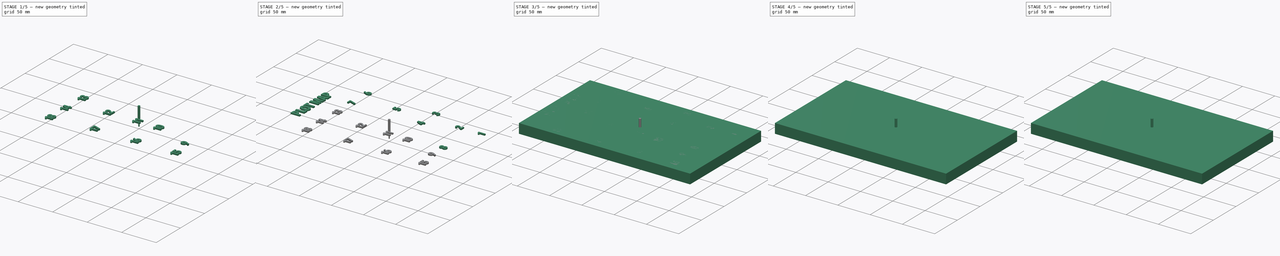
[diagram: build sequence overview — one tinted view per stage of 5, left to right]
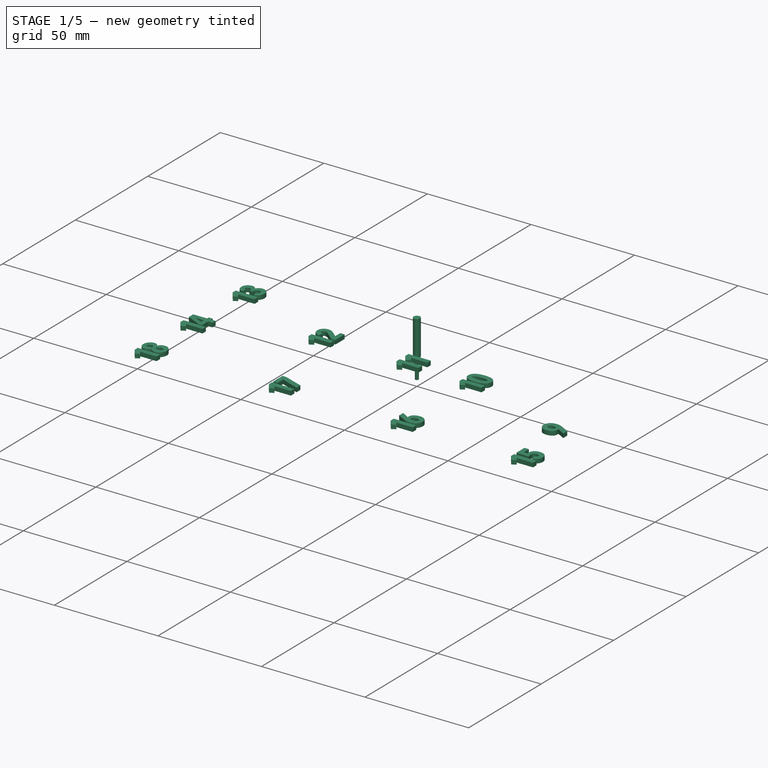
[diagram: stage 1 of 5 — iso view after this stage's code; geometry added in this stage tinted green]
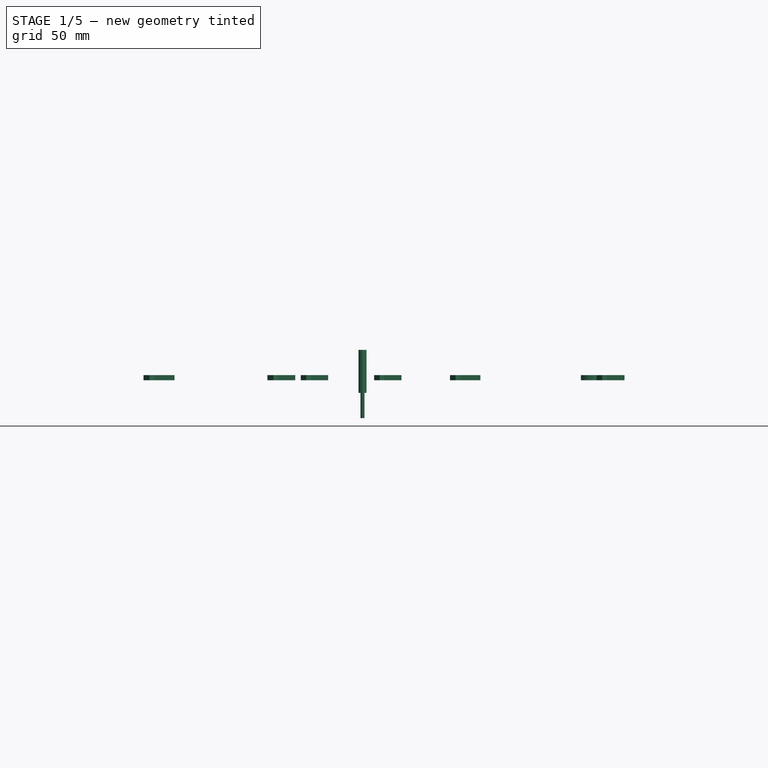
[diagram: stage 1 of 5 — front view after this stage's code; geometry added in this stage tinted green]
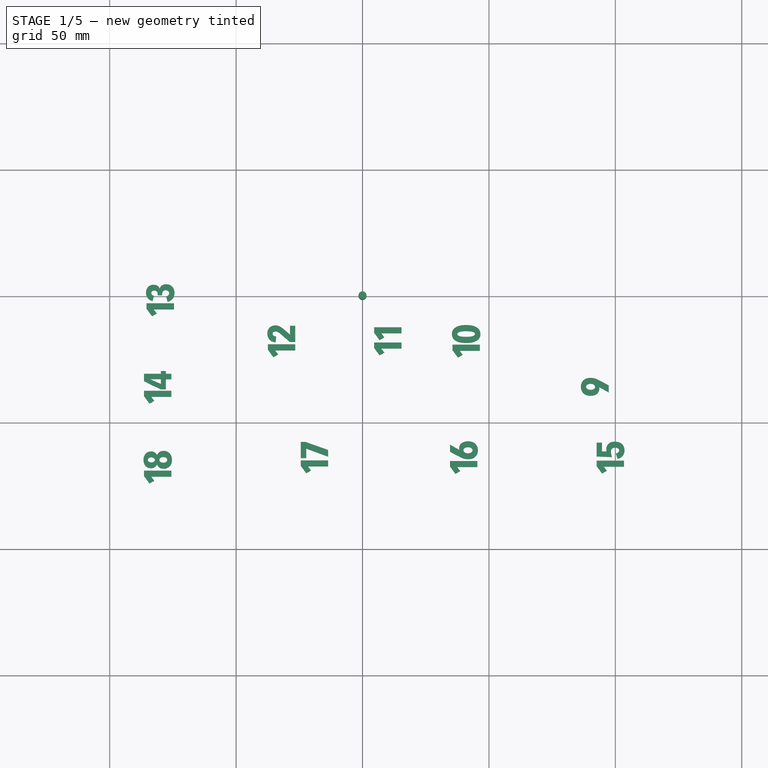
[diagram: stage 1 of 5 — top view after this stage's code; geometry added in this stage tinted green]
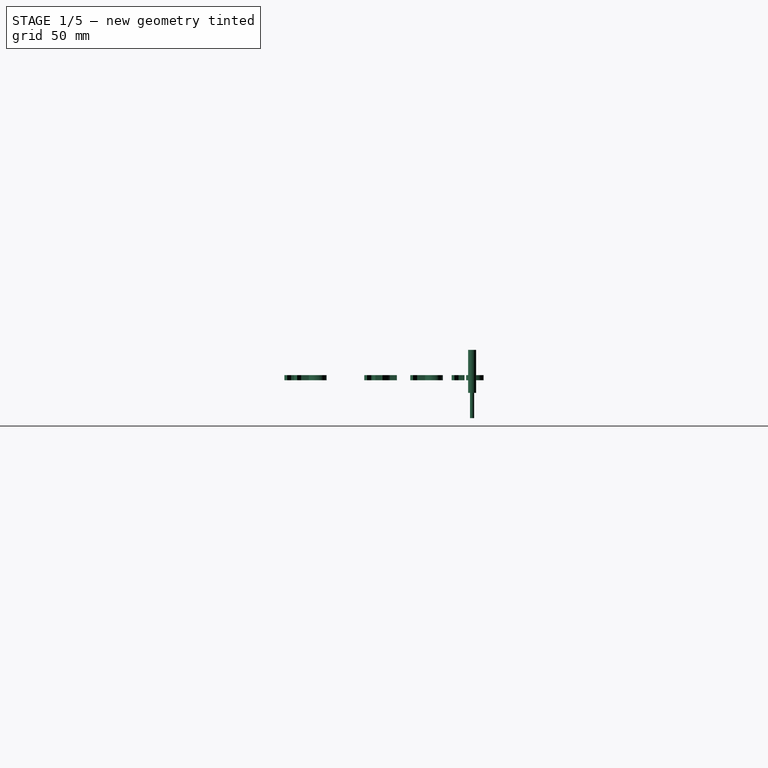
[diagram: stage 1 of 5 — right view after this stage's code; geometry added in this stage tinted green]
FCSTD DOCUMENT  (FreeCAD 0.22R37249 (Git))
Label: juell_top_w_title_2
License: All rights reserved
LicenseURL: http://en.wikipedia.org/wiki/All_rights_reserved
objects: Part::FeaturePython×30, Path::FeaturePython×30, Part::Part2DObjectPython×19, Part::Extrusion×19, App::DocumentObjectGroup×6, Sketcher::SketchObject×2, App::FeaturePython×2, Spreadsheet::Sheet×1, PartDesign::Pad×1, PartDesign::Pocket×1, PartDesign::Body×1, Part::MultiFuse×1, Part::Cut×1
note: 79 computed .brp shape members not serialized (recipe doc carries the construction recipe); baked Part::Feature solids carry a one-line shape summary decoded from their .brp

FEATURE [Part::Extrusion] Extrude009
  Base = -> ShapeString008
  Dir = (0,0,1)
  DirMode = 2
  FaceMakerClass = Part::FaceMakerBullseye
  LengthFwd = 2
  LengthRev = 0
  Solid = false
  Symmetric = false
FEATURE [Part::Extrusion] Extrude010
  Base = -> ShapeString009
  Dir = (0,0,1)
  DirMode = 2
  FaceMakerClass = Part::FaceMakerBullseye
  LengthFwd = 2
  LengthRev = 0
  Solid = false
  Symmetric = false
FEATURE [Part::Extrusion] Extrude011
  Base = -> ShapeString010
  Dir = (0,0,1)
  DirMode = 2
  FaceMakerClass = Part::FaceMakerBullseye
  LengthFwd = 2
  LengthRev = 0
  Solid = false
  Symmetric = false
FEATURE [Part::Extrusion] Extrude012
  Base = -> ShapeString011
  Dir = (0,0,1)
  DirMode = 2
  FaceMakerClass = Part::FaceMakerBullseye
  LengthFwd = 2
  LengthRev = 0
  Solid = false
  Symmetric = false
FEATURE [Part::Extrusion] Extrude013
  Base = -> ShapeString012
  Dir = (0,0,1)
  DirMode = 2
  FaceMakerClass = Part::FaceMakerBullseye
  LengthFwd = 2
  LengthRev = 0
  Solid = false
  Symmetric = false
FEATURE [Part::Extrusion] Extrude014
  Base = -> ShapeString013
  Dir = (0,0,1)
  DirMode = 2
  FaceMakerClass = Part::FaceMakerBullseye
  LengthFwd = 2
  LengthRev = 0
  Solid = false
  Symmetric = false
FEATURE [Part::Extrusion] Extrude015
  Base = -> ShapeString014
  Dir = (0,0,1)
  DirMode = 2
  FaceMakerClass = Part::FaceMakerBullseye
  LengthFwd = 2
  LengthRev = 0
  Solid = false
  Symmetric = false
FEATURE [Part::Extrusion] Extrude016
  Base = -> ShapeString015
  Dir = (0,0,1)
  DirMode = 2
  FaceMakerClass = Part::FaceMakerBullseye
  LengthFwd = 2
  LengthRev = 0
  Solid = false
  Symmetric = false
FEATURE [Part::Extrusion] Extrude017
  Base = -> ShapeString016
  Dir = (0,0,1)
  DirMode = 2
  FaceMakerClass = Part::FaceMakerBullseye
  LengthFwd = 2
  LengthRev = 0
  Solid = false
  Symmetric = false
FEATURE [Part::Extrusion] Extrude018
  Base = -> ShapeString017
  Dir = (0,0,1)
  DirMode = 2
  FaceMakerClass = Part::FaceMakerBullseye
  LengthFwd = 2
  LengthRev = 0
  Solid = false
  Symmetric = false
FEATURE [Path::FeaturePython] __4mm_Endmill003  label="1.4mm_Endmill004"  # Path/CAM operation (typed FeaturePython)
  HorizFeed = 3.33333
  HorizRapid = 0
  SpindleDir = 0
  SpindleSpeed = 1000
  Tool = -> ToolBit016
  ToolNumber = 5
  VertFeed = 3.33333
  VertRapid = 0
  expr: HorizRapid = SetupSheet001.HorizRapid
  expr: VertRapid = SetupSheet001.VertRapid
FEATURE [Part::FeaturePython] ToolBit017  label="1.6mm_Endmill005"  # Path/CAM toolbit (typed FeaturePython)
  BitPropertyNames = Chipload | CuttingEdgeHeight | Diameter | Flutes | Length | Material | ShankDiameter | SpindleDirection
  BitShape = /private/var/folders/4z/cpn_82wx3qz0m4lfqxz9fps80000gn/T/AppTranslocation/126785DC-0F5B-4CDE-97FB-C5FB5BEDB88A/d/FreeCAD.app/Contents/Resources/Mod/CAM/Tools/Shape/endmill.fcstd
  Chipload = 0
  CuttingEdgeHeight = 10
  Diameter = 1.6
  Flutes = 0
  Length = 27
  Material = 0
  ShankDiameter = 3.17
  ShapeName = endmill
  SpindleDirection = 0
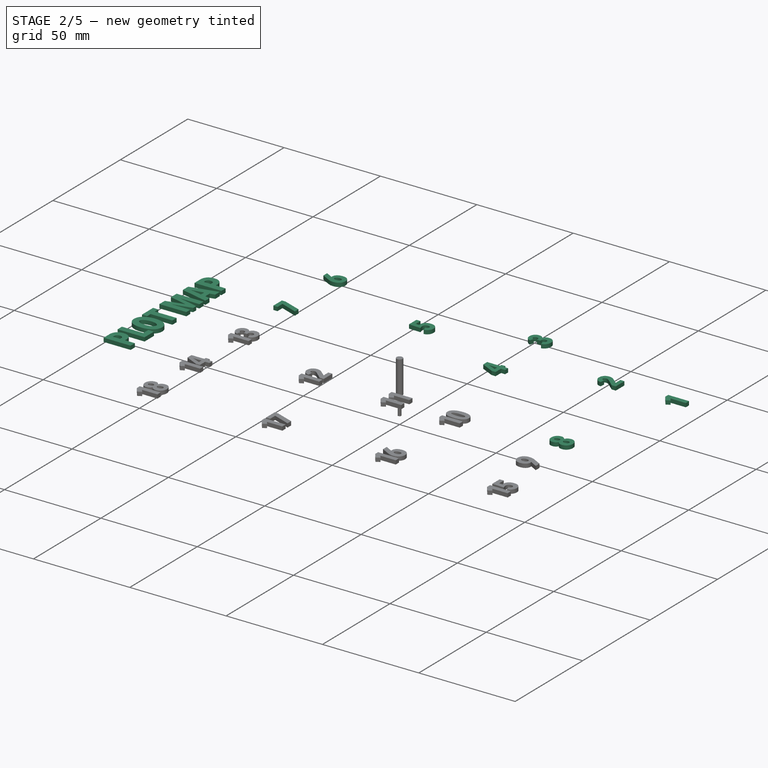
[diagram: stage 2 of 5 — iso view after this stage's code; geometry added in this stage tinted green]
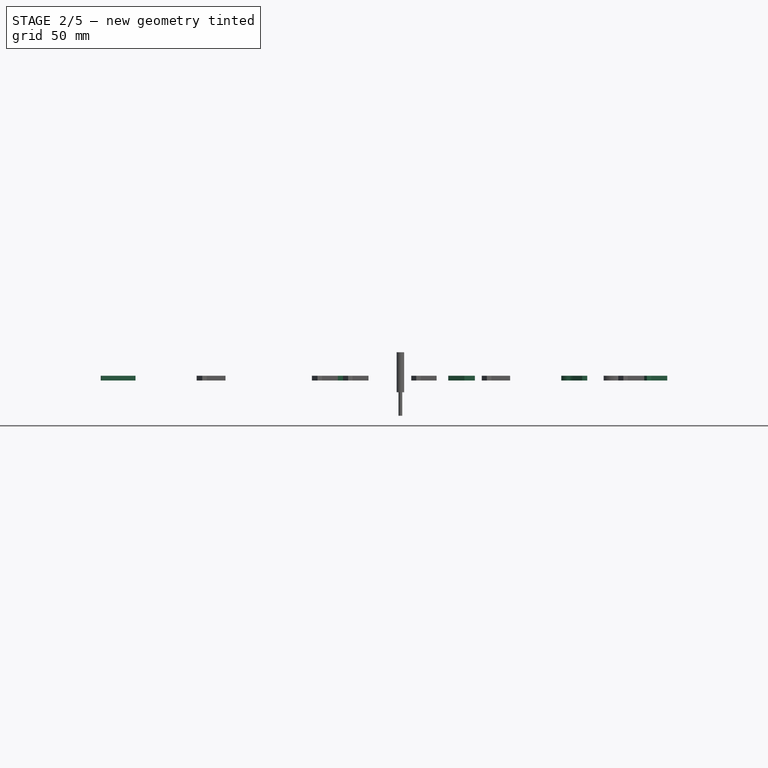
[diagram: stage 2 of 5 — front view after this stage's code; geometry added in this stage tinted green]
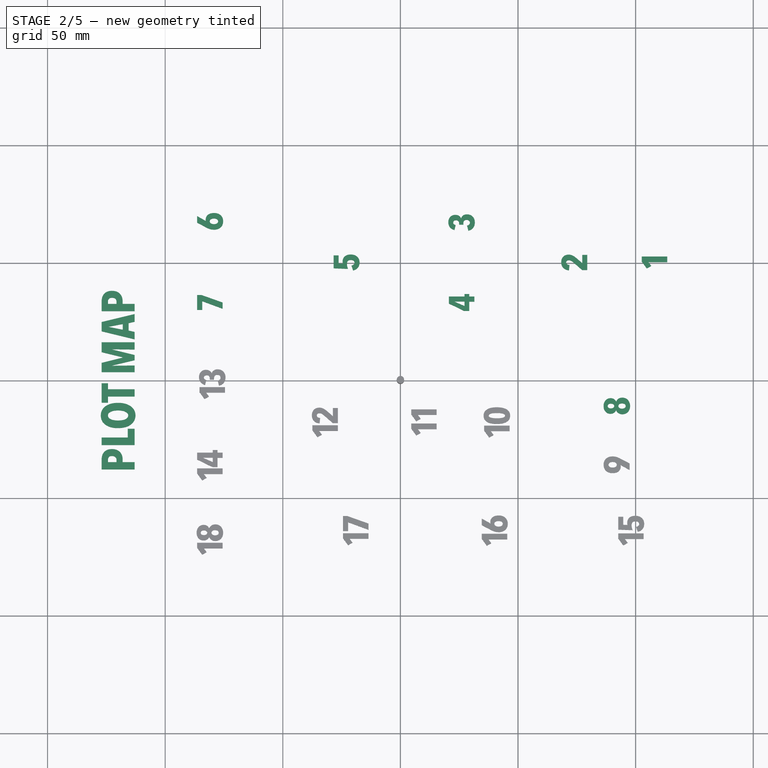
[diagram: stage 2 of 5 — top view after this stage's code; geometry added in this stage tinted green]
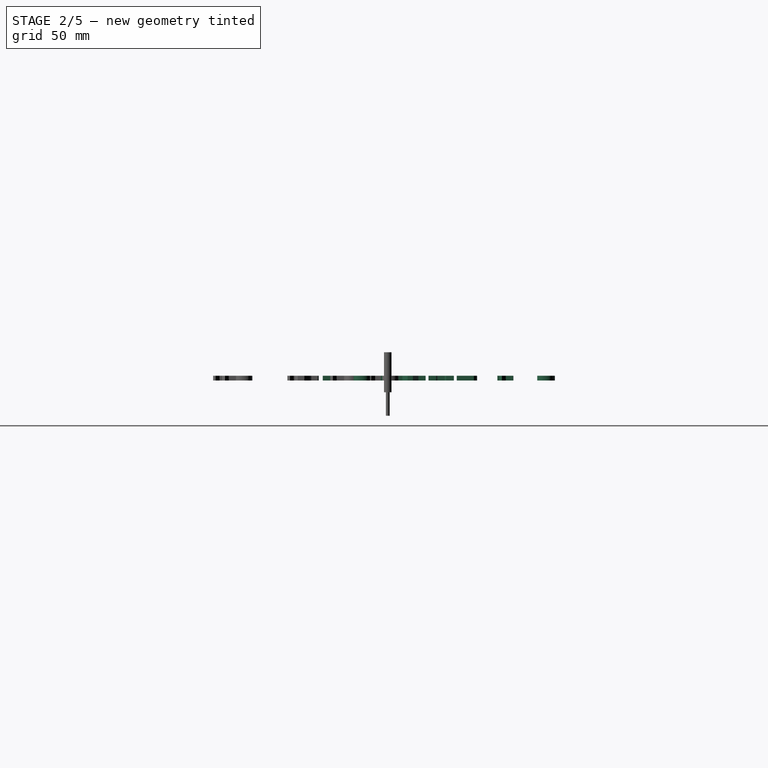
[diagram: stage 2 of 5 — right view after this stage's code; geometry added in this stage tinted green]
FEATURE [PartDesign::Body] Body
  Group = -> [Sketch,Pad,Sketch001,Pocket]
  Origin = -> Origin
  Tip = -> Pocket
FEATURE [Part::Extrusion] Extrude
  Base = -> ShapeString018
  Dir = (0,0,1)
  DirMode = 2
  FaceMakerClass = Part::FaceMakerBullseye
  LengthFwd = 2
  LengthRev = 0
  Solid = false
  Symmetric = false
FEATURE [Part::Extrusion] Extrude001
  Base = -> ShapeString
  Dir = (0,0,1)
  DirMode = 2
  FaceMakerClass = Part::FaceMakerBullseye
  LengthFwd = 2
  LengthRev = 0
  Solid = false
  Symmetric = false
FEATURE [Part::Extrusion] Extrude002
  Base = -> ShapeString001
  Dir = (0,0,1)
  DirMode = 2
  FaceMakerClass = Part::FaceMakerBullseye
  LengthFwd = 2
  LengthRev = 0
  Solid = false
  Symmetric = false
FEATURE [Part::Extrusion] Extrude003
  Base = -> ShapeString002
  Dir = (0,0,1)
  DirMode = 2
  FaceMakerClass = Part::FaceMakerBullseye
  LengthFwd = 2
  LengthRev = 0
  Solid = false
  Symmetric = false
FEATURE [Part::Extrusion] Extrude004
  Base = -> ShapeString003
  Dir = (0,0,1)
  DirMode = 2
  FaceMakerClass = Part::FaceMakerBullseye
  LengthFwd = 2
  LengthRev = 0
  Solid = false
  Symmetric = false
FEATURE [Part::Extrusion] Extrude005
  Base = -> ShapeString004
  Dir = (0,0,1)
  DirMode = 2
  FaceMakerClass = Part::FaceMakerBullseye
  LengthFwd = 2
  LengthRev = 0
  Solid = false
  Symmetric = false
FEATURE [Part::Extrusion] Extrude006
  Base = -> ShapeString005
  Dir = (0,0,1)
  DirMode = 2
  FaceMakerClass = Part::FaceMakerBullseye
  LengthFwd = 2
  LengthRev = 0
  Solid = false
  Symmetric = false
FEATURE [Part::Extrusion] Extrude007
  Base = -> ShapeString006
  Dir = (0,0,1)
  DirMode = 2
  FaceMakerClass = Part::FaceMakerBullseye
  LengthFwd = 2
  LengthRev = 0
  Solid = false
  Symmetric = false
FEATURE [Part::Extrusion] Extrude008
  Base = -> ShapeString007
  Dir = (0,0,1)
  DirMode = 2
  FaceMakerClass = Part::FaceMakerBullseye
  LengthFwd = 2
  LengthRev = 0
  Solid = false
  Symmetric = false
FEATURE [Part::MultiFuse] Fusion
  Shapes = -> [Extrude,Extrude001,Extrude002,Extrude003,Extrude004,Extrude005,Extrude006,Extrude007,Extrude008,Extrude009,Extrude010,Extrude011,Extrude012,Extrude013,Extrude014,Extrude015,Extrude016,Extrude017,Extrude018]
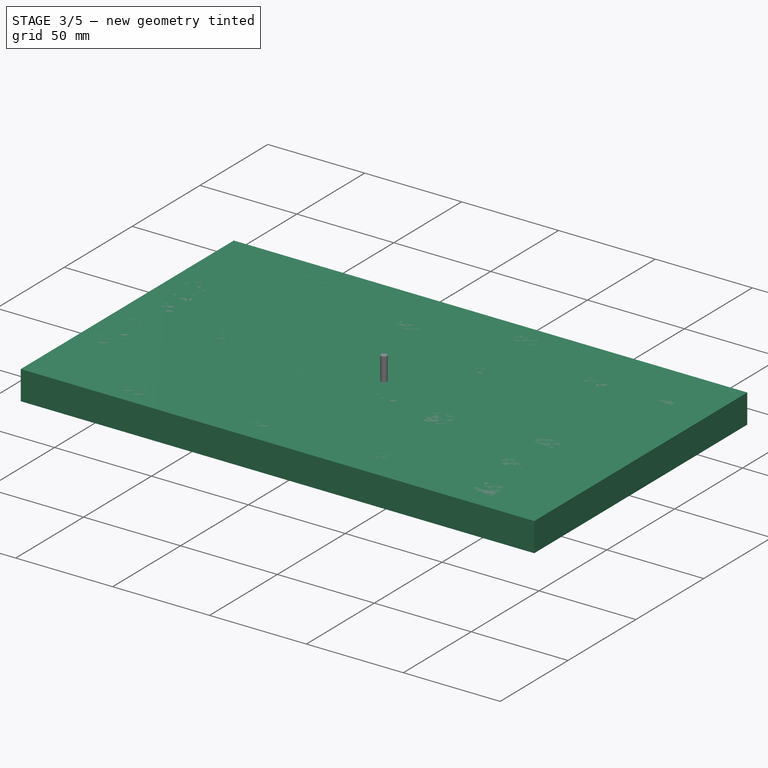
[diagram: stage 3 of 5 — iso view after this stage's code; geometry added in this stage tinted green]
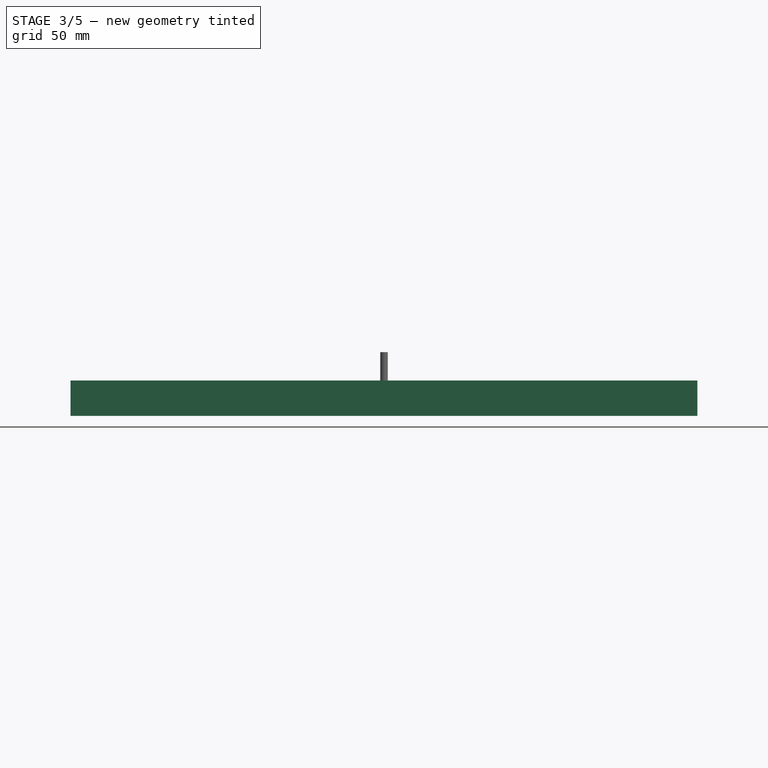
[diagram: stage 3 of 5 — front view after this stage's code; geometry added in this stage tinted green]
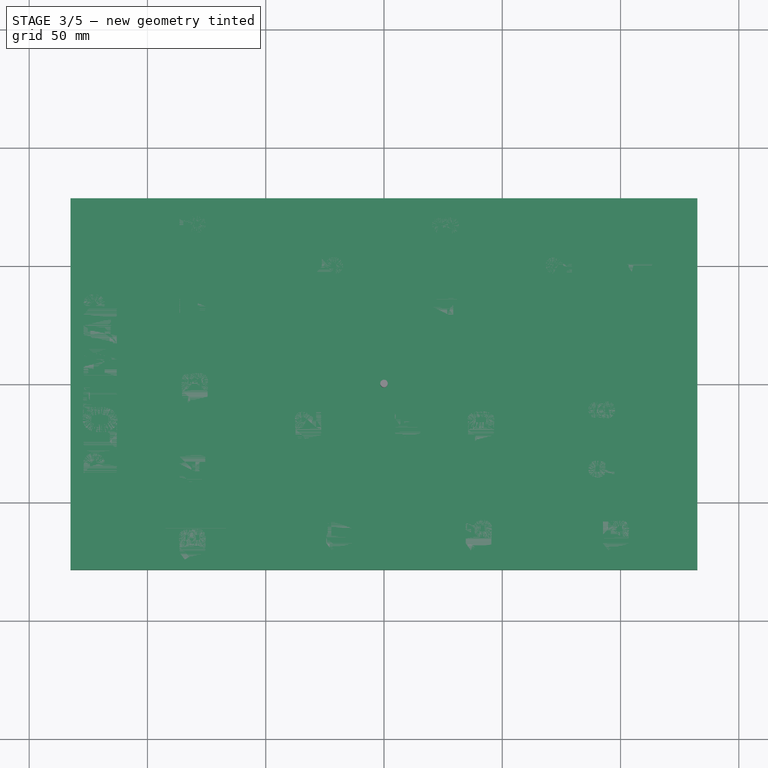
[diagram: stage 3 of 5 — top view after this stage's code; geometry added in this stage tinted green]
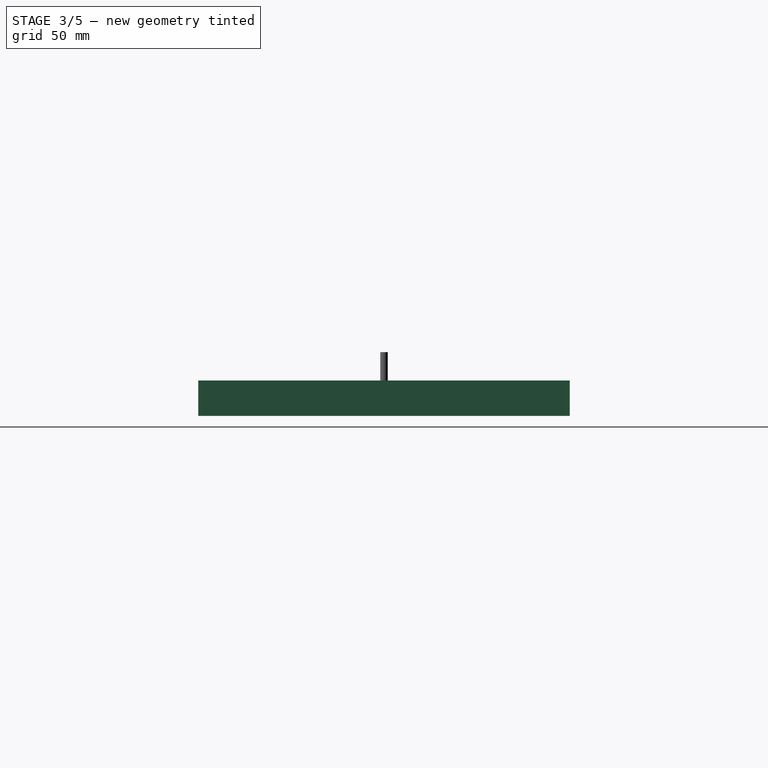
[diagram: stage 3 of 5 — right view after this stage's code; geometry added in this stage tinted green]
FEATURE [Spreadsheet::Sheet] Spreadsheet  label="vars"
  cells = A1='placard; E1='X; F1='Y; A2='width; B2(width)=263; C2=263; D2=1; E2(x1)=108; F2(y1)=50; A3='length; B3(length)=155; C3=158; D3=2; E3(x2)=74; F3(y2)==y1; A4='height; B4(height)=15; D4=3; E4(x3)=26; F4(y3)=67; A5='border_size; B5(border_size)=4; D5=4; E5(x4)==x3; F5(y4)=33; A6='cut_height; B6(cut_height)=3; D6=5; E6(x5)=-23; F6(y5)==y1; A7='cut_offset; B7(cut_offset)=0; D7=6; E7(x6)=-81; F7(y6)=67.5; A8='font_height; B8(font_height)=20; D8=7; E8(x7)==x6; F8(y7)=33; A9='title char length; B9(title_char_length)=8; D9=8; E9(x8)=92; F9(y8)=-11; A10='font_size; B10(font_size)=6.8; D10=9; E10(x9)==x8; F10(y9)=-36; A11='font_space; B11(font_space)=0; D11=10; E11(x10)=41; F11(y10)=-18; A12='plot_width_wide; B12(plot_width_wide)==B14 * 1.5; C12==40 * 1.5; D12=11; E12(x11)=10; F12(y11)==y10; A13='plot_length_wide; B13(plot_length_wide)==plot_length_narrow * 3.2; C13==20 * 1.5; D13=12; E13(x12)=-32; F13(y12)==y10; A14='plot_length_narrow; B14(plot_length_narrow)==plot_squared / 30; C14==200 * 16; D14=13; E14(x13)=-80; F14(y13)=-1.75; A15='plot_width_narrow; B15(plot_width_narrow)==B12 * 2.3; D15=14; E15(x14)==x6; F15(y14)=-36.2; A16='plot_border; B16(plot_border)=1; D16=15; E16(x15)=98; F16(y15)=-64; A17='border multiplier; B17(border_multiplier)=0.75; D17=16; E17(x16)=40; F17(y16)==y15; D18=17; E18(x17)=-19; F18(y17)==y15; B19(plot_squared)=470; C19(plot_magnifier)=200; D19=18; E19(x18)==x6; F19(y18)=-67.8; A20='font_br_x; B20(font_br_x)=33; D20='Plot Map; E20(x_plot_map)=-120; F20(y_plot_map)=0; A21='font rotation; B21(font_rotation)=90; A22='gap; B22(gap)==plot_width_wide + gap_narrow - plot_length_narrow; A23='gap narrow; B23(gap_narrow)=2; A24='gap /2; B24(gap_wide)==plot_length_wide - plot_length_narrow * 2
FEATURE [Part::Part2DObjectPython] ShapeString018  label="Plot Map"  # Draft 2D object (typed FeaturePython)
  FontFile = /System/Library/Fonts/Avenir Next Condensed.ttc
  Fuse = false
  Justification = 4
  JustificationReference = 0
  KeepLeftMargin = false
  MakeFace = true
  ObliqueAngle = 0
  Placement = pos=(-120,0,15) rot=(0,0,1;1.5708rad)
  ScaleToSize = true
  Size = 14
  String = PLOT MAP
  Tracking = 0
  expr: .Placement.Base.x = <<vars>>.x_plot_map
  expr: .Placement.Base.y = <<vars>>.y_plot_map
  expr: .Placement.Base.z = <<vars>>.height
  expr: .Placement.Rotation.Angle = <<vars>>.font_rotation
FEATURE [Sketcher::SketchObject] Sketch
  AttachmentSupport = -> [XY_Plane]
  FullyConstrained = true
  MapMode = 5
  expr: Constraints[10] = <<vars>>.length
  expr: Constraints[9] = <<vars>>.width
  sketch-geometry (4):
    g0: LineSegment StartX=-131.5 StartY=-77.5 StartZ=0 EndX=131.5 EndY=-77.5 EndZ=0
    g1: LineSegment StartX=131.5 StartY=-77.5 StartZ=0 EndX=131.5 EndY=77.5 EndZ=0
    g2: LineSegment StartX=131.5 StartY=77.5 StartZ=0 EndX=-131.5 EndY=77.5 EndZ=0
    g3: LineSegment StartX=-131.5 StartY=77.5 StartZ=0 EndX=-131.5 EndY=-77.5 EndZ=0
  constraints (11):
    c: Coincident(g0,g1)
    c: Coincident(g1,g2)
    c: Coincident(g2,g3)
    c: Coincident(g3,g0)
    c: Horizontal(g0)
    c: Horizontal(g2)
    c: Vertical(g1)
    c: Vertical(g3)
    c: Symmetric(g0,g1,g-1)
    c: DistanceX(g2,g2) = 263
    c: DistanceY(g1,g1) = 155
FEATURE [PartDesign::Pad] Pad
  Direction = (0,0,1)
  Length = 15
  Length2 = 10
  Profile = -> Sketch
  ReferenceAxis = -> Sketch [N_Axis]
  Suppressed = false
  Type = 0
  expr: Length = <<vars>>.height
FEATURE [Part::Part2DObjectPython] ShapeString  label="01"  # Draft 2D object (typed FeaturePython)
  FontFile = /System/Library/Fonts/Avenir Next Condensed.ttc
  Fuse = false
  Justification = 4
  JustificationReference = 0
  KeepLeftMargin = true
  MakeFace = true
  ObliqueAngle = 0
  Placement = pos=(108,50,15) rot=(0,0,1;1.5708rad)
  ScaleToSize = false
  Size = 6.8
  String = 1
  Tracking = 0
  expr: .Placement.Base.x = <<vars>>.x1
  expr: .Placement.Base.y = <<vars>>.y1
  expr: .Placement.Base.z = <<vars>>.height
  expr: .Placement.Rotation.Angle = <<vars>>.font_rotation
  expr: Size = <<vars>>.B10
FEATURE [Part::Part2DObjectPython] ShapeString001  label="02"  # Draft 2D object (typed FeaturePython)
  FontFile = /System/Library/Fonts/Avenir Next Condensed.ttc
  Fuse = false
  Justification = 4
  JustificationReference = 0
  KeepLeftMargin = true
  MakeFace = true
  ObliqueAngle = 0
  Placement = pos=(74,50,15) rot=(0,0,1;1.5708rad)
  ScaleToSize = false
  Size = 6.8
  String = 2
  Tracking = 0
  expr: .Placement.Base.x = <<vars>>.x2
  expr: .Placement.Base.y = <<vars>>.y2
  expr: .Placement.Base.z = <<vars>>.height
  expr: .Placement.Rotation.Angle = <<vars>>.font_rotation
  expr: Size = <<vars>>.B10
FEATURE [Part::Part2DObjectPython] ShapeString002  label="03"  # Draft 2D object (typed FeaturePython)
  FontFile = /System/Library/Fonts/Avenir Next Condensed.ttc
  Fuse = false
  Justification = 4
  JustificationReference = 0
  KeepLeftMargin = true
  MakeFace = true
  ObliqueAngle = 0
  Placement = pos=(26,67,15) rot=(0,0,1;1.5708rad)
  ScaleToSize = false
  Size = 6.8
  String = 3
  Tracking = 0
  expr: .Placement.Base.x = <<vars>>.x3
  expr: .Placement.Base.y = <<vars>>.y3
  expr: .Placement.Base.z = <<vars>>.height
  expr: .Placement.Rotation.Angle = <<vars>>.font_rotation
  expr: Size = <<vars>>.B10
FEATURE [Part::Part2DObjectPython] ShapeString003  label="04"  # Draft 2D object (typed FeaturePython)
  FontFile = /System/Library/Fonts/Avenir Next Condensed.ttc
  Fuse = false
  Justification = 4
  JustificationReference = 0
  KeepLeftMargin = true
  MakeFace = true
  ObliqueAngle = 0
  Placement = pos=(26,33,15) rot=(0,0,1;1.5708rad)
  ScaleToSize = false
  Size = 6.8
  String = 4
  Tracking = 0
  expr: .Placement.Base.x = <<vars>>.x4
  expr: .Placement.Base.y = <<vars>>.y4
  expr: .Placement.Base.z = <<vars>>.height
  expr: .Placement.Rotation.Angle = <<vars>>.font_rotation
  expr: Size = <<vars>>.B10
FEATURE [Part::Part2DObjectPython] ShapeString004  label="05"  # Draft 2D object (typed FeaturePython)
  FontFile = /System/Library/Fonts/Avenir Next Condensed.ttc
  Fuse = false
  Justification = 4
  JustificationReference = 0
  KeepLeftMargin = true
  MakeFace = true
  ObliqueAngle = 0
  Placement = pos=(-23,50,15) rot=(0,0,1;1.5708rad)
  ScaleToSize = false
  Size = 6.8
  String = 5
  Tracking = 0
  expr: .Placement.Base.x = <<vars>>.x5
  expr: .Placement.Base.y = <<vars>>.y5
  expr: .Placement.Base.z = <<vars>>.height
  expr: .Placement.Rotation.Angle = <<vars>>.font_rotation
  expr: Size = <<vars>>.B10
FEATURE [Part::Part2DObjectPython] ShapeString005  label="06"  # Draft 2D object (typed FeaturePython)
  FontFile = /System/Library/Fonts/Avenir Next Condensed.ttc
  Fuse = false
  Justification = 4
  JustificationReference = 0
  KeepLeftMargin = true
  MakeFace = true
  ObliqueAngle = 0
  Placement = pos=(-81,67.5,15) rot=(0,0,1;1.5708rad)
  ScaleToSize = false
  Size = 6.8
  String = 6
  Tracking = 0
  expr: .Placement.Base.x = <<vars>>.x6
  expr: .Placement.Base.y = <<vars>>.y6
  expr: .Placement.Base.z = <<vars>>.height
  expr: .Placement.Rotation.Angle = <<vars>>.font_rotation
  expr: Size = <<vars>>.B10
FEATURE [Part::Part2DObjectPython] ShapeString006  label="07"  # Draft 2D object (typed FeaturePython)
  FontFile = /System/Library/Fonts/Avenir Next Condensed.ttc
  Fuse = false
  Justification = 4
  JustificationReference = 0
  KeepLeftMargin = true
  MakeFace = true
  ObliqueAngle = 0
  Placement = pos=(-81,33,15) rot=(0,0,1;1.5708rad)
  ScaleToSize = false
  Size = 6.8
  String = 7
  Tracking = 0
  expr: .Placement.Base.x = <<vars>>.x7
  expr: .Placement.Base.y = <<vars>>.y7
  expr: .Placement.Base.z = <<vars>>.height
  expr: .Placement.Rotation.Angle = <<vars>>.font_rotation
  expr: Size = <<vars>>.B10
FEATURE [Part::Part2DObjectPython] ShapeString007  label="08"  # Draft 2D object (typed FeaturePython)
  FontFile = /System/Library/Fonts/Avenir Next Condensed.ttc
  Fuse = false
  Justification = 4
  JustificationReference = 0
  KeepLeftMargin = true
  MakeFace = true
  ObliqueAngle = 0
  Placement = pos=(92,-11,15) rot=(0,0,1;1.5708rad)
  ScaleToSize = false
  Size = 6.8
  String = 8
  Tracking = 0
  expr: .Placement.Base.x = <<vars>>.x8
  expr: .Placement.Base.y = <<vars>>.y8
  expr: .Placement.Base.z = <<vars>>.height
  expr: .Placement.Rotation.Angle = <<vars>>.font_rotation
  expr: Size = <<vars>>.B10
FEATURE [Part::Part2DObjectPython] ShapeString008  label="09"  # Draft 2D object (typed FeaturePython)
  FontFile = /System/Library/Fonts/Avenir Next Condensed.ttc
  Fuse = false
  Justification = 4
  JustificationReference = 0
  KeepLeftMargin = true
  MakeFace = true
  ObliqueAngle = 0
  Placement = pos=(92,-36,15) rot=(0,0,1;1.5708rad)
  ScaleToSize = false
  Size = 6.8
  String = 9
  Tracking = 0
  expr: .Placement.Base.x = <<vars>>.x9
  expr: .Placement.Base.y = <<vars>>.y9
  expr: .Placement.Base.z = <<vars>>.height
  expr: .Placement.Rotation.Angle = <<vars>>.font_rotation
  expr: Size = <<vars>>.B10
FEATURE [Part::Part2DObjectPython] ShapeString009  label="10"  # Draft 2D object (typed FeaturePython)
  FontFile = /System/Library/Fonts/Avenir Next Condensed.ttc
  Fuse = false
  Justification = 4
  JustificationReference = 0
  KeepLeftMargin = true
  MakeFace = true
  ObliqueAngle = 0
  Placement = pos=(41,-18,15) rot=(0,0,1;1.5708rad)
  ScaleToSize = false
  Size = 6.8
  String = 10
  Tracking = -2
  expr: .Placement.Base.x = <<vars>>.x10
  expr: .Placement.Base.y = <<vars>>.y10
  expr: .Placement.Base.z = <<vars>>.height
  expr: .Placement.Rotation.Angle = <<vars>>.font_rotation
  expr: Size = <<vars>>.B10
FEATURE [Part::Part2DObjectPython] ShapeString010  label="11"  # Draft 2D object (typed FeaturePython)
  FontFile = /System/Library/Fonts/Avenir Next Condensed.ttc
  Fuse = false
  Justification = 4
  JustificationReference = 0
  KeepLeftMargin = true
  MakeFace = true
  ObliqueAngle = 0
  Placement = pos=(10,-18,15) rot=(0,0,1;1.5708rad)
  ScaleToSize = false
  Size = 6.8
  String = 11
  Tracking = -2
  expr: .Placement.Base.x = <<vars>>.x11
  expr: .Placement.Base.y = <<vars>>.y11
  expr: .Placement.Base.z = <<vars>>.height
  expr: .Placement.Rotation.Angle = <<vars>>.font_rotation
  expr: Size = <<vars>>.B10
FEATURE [Part::Part2DObjectPython] ShapeString011  label="12"  # Draft 2D object (typed FeaturePython)
  FontFile = /System/Library/Fonts/Avenir Next Condensed.ttc
  Fuse = false
  Justification = 4
  JustificationReference = 0
  KeepLeftMargin = true
  MakeFace = true
  ObliqueAngle = 0
  Placement = pos=(-32,-18,15) rot=(0,0,1;1.5708rad)
  ScaleToSize = false
  Size = 6.8
  String = 12
  Tracking = -2
  expr: .Placement.Base.x = <<vars>>.x12
  expr: .Placement.Base.y = <<vars>>.y12
  expr: .Placement.Base.z = <<vars>>.height
  expr: .Placement.Rotation.Angle = <<vars>>.font_rotation
  expr: Size = <<vars>>.B10
FEATURE [Part::Part2DObjectPython] ShapeString012  label="13"  # Draft 2D object (typed FeaturePython)
  FontFile = /System/Library/Fonts/Avenir Next Condensed.ttc
  Fuse = false
  Justification = 4
  JustificationReference = 0
  KeepLeftMargin = true
  MakeFace = true
  ObliqueAngle = 0
  Placement = pos=(-80,-1.75,15) rot=(0,0,1;1.5708rad)
  ScaleToSize = false
  Size = 6.8
  String = 13
  Tracking = -2
  expr: .Placement.Base.x = <<vars>>.x13
  expr: .Placement.Base.y = <<vars>>.y13
  expr: .Placement.Base.z = <<vars>>.height
  expr: .Placement.Rotation.Angle = <<vars>>.font_rotation
  expr: Size = <<vars>>.B10
FEATURE [Part::Part2DObjectPython] ShapeString013  label="14"  # Draft 2D object (typed FeaturePython)
  FontFile = /System/Library/Fonts/Avenir Next Condensed.ttc
  Fuse = false
  Justification = 4
  JustificationReference = 0
  KeepLeftMargin = true
  MakeFace = true
  ObliqueAngle = 0
  Placement = pos=(-81,-36.2,15) rot=(0,0,1;1.5708rad)
  ScaleToSize = false
  Size = 6.8
  String = 14
  Tracking = -2
  expr: .Placement.Base.x = <<vars>>.x14
  expr: .Placement.Base.y = <<vars>>.y14
  expr: .Placement.Base.z = <<vars>>.height
  expr: .Placement.Rotation.Angle = <<vars>>.font_rotation
  expr: Size = <<vars>>.B10
FEATURE [Part::Part2DObjectPython] ShapeString014  label="15"  # Draft 2D object (typed FeaturePython)
  FontFile = /System/Library/Fonts/Avenir Next Condensed.ttc
  Fuse = false
  Justification = 4
  JustificationReference = 0
  KeepLeftMargin = true
  MakeFace = true
  ObliqueAngle = 0
  Placement = pos=(98,-64,15) rot=(0,0,1;1.5708rad)
  ScaleToSize = false
  Size = 6.8
  String = 15
  Tracking = -2
  expr: .Placement.Base.x = <<vars>>.x15
  expr: .Placement.Base.y = <<vars>>.y15
  expr: .Placement.Base.z = <<vars>>.height
  expr: .Placement.Rotation.Angle = <<vars>>.font_rotation
  expr: Size = <<vars>>.B10
FEATURE [Part::Part2DObjectPython] ShapeString015  label="16"  # Draft 2D object (typed FeaturePython)
  FontFile = /System/Library/Fonts/Avenir Next Condensed.ttc
  Fuse = false
  Justification = 4
  JustificationReference = 0
  KeepLeftMargin = true
  MakeFace = true
  ObliqueAngle = 0
  Placement = pos=(40,-64,15) rot=(0,0,1;1.5708rad)
  ScaleToSize = false
  Size = 6.8
  String = 16
  Tracking = -2
  expr: .Placement.Base.x = <<vars>>.x16
  expr: .Placement.Base.y = <<vars>>.y16
  expr: .Placement.Base.z = <<vars>>.height
  expr: .Placement.Rotation.Angle = <<vars>>.font_rotation
  expr: Size = <<vars>>.B10
FEATURE [Part::Part2DObjectPython] ShapeString016  label="17"  # Draft 2D object (typed FeaturePython)
  FontFile = /System/Library/Fonts/Avenir Next Condensed.ttc
  Fuse = false
  Justification = 4
  JustificationReference = 0
  KeepLeftMargin = true
  MakeFace = true
  ObliqueAngle = 0
  Placement = pos=(-19,-64,15) rot=(0,0,1;1.5708rad)
  ScaleToSize = false
  Size = 6.8
  String = 17
  Tracking = -2
  expr: .Placement.Base.x = <<vars>>.x17
  expr: .Placement.Base.y = <<vars>>.y17
  expr: .Placement.Base.z = <<vars>>.height
  expr: .Placement.Rotation.Angle = <<vars>>.font_rotation
  expr: Size = <<vars>>.B10
FEATURE [Part::Part2DObjectPython] ShapeString017  label="18"  # Draft 2D object (typed FeaturePython)
  FontFile = /System/Library/Fonts/Avenir Next Condensed.ttc
  Fuse = false
  Justification = 4
  JustificationReference = 1
  KeepLeftMargin = true
  MakeFace = true
  ObliqueAngle = 0
  Placement = pos=(-81,-67.8,15) rot=(0,0,1;1.5708rad)
  ScaleToSize = false
  Size = 6.8
  String = 18
  Tracking = -2
  expr: .Placement.Base.x = <<vars>>.x18
  expr: .Placement.Base.y = <<vars>>.y18
  expr: .Placement.Base.z = <<vars>>.height
  expr: .Placement.Rotation.Angle = <<vars>>.font_rotation
  expr: Size = <<vars>>.B10
FEATURE [Sketcher::SketchObject] Sketch001
  AttachmentSupport = -> [Pad]
  ExternalGeometry = -> [Pad]
  FullyConstrained = true
  MapMode = 5
  Placement = pos=(0,0,15) rot=(0,0,1;0rad)
  expr: Constraints[131] = <<vars>>.plot_border
  expr: Constraints[132] = <<vars>>.plot_border
  expr: Constraints[133] = <<vars>>.plot_border
  expr: Constraints[134] = <<vars>>.plot_border
  expr: Constraints[135] = <<vars>>.plot_length_wide
  expr: Constraints[136] = <<vars>>.plot_width_wide
  expr: Constraints[139] = <<vars>>.gap_wide
  expr: Constraints[156] = <<vars>>.plot_border
  expr: Constraints[157] = <<vars>>.plot_border
  expr: Constraints[158] = <<vars>>.plot_length_wide
  expr: Constraints[159] = <<vars>>.plot_border
  expr: Constraints[160] = <<vars>>.plot_border
  expr: Constraints[161] = <<vars>>.plot_width_wide
  expr: Constraints[163] = <<vars>>.gap
  expr: Constraints[16] = <<vars>>.plot_border
  expr: Constraints[17] = <<vars>>.plot_border
  expr: Constraints[180] = <<vars>>.plot_border
  expr: Constraints[181] = <<vars>>.plot_border
  expr: Constraints[182] = <<vars>>.plot_width_wide
  expr: Constraints[183] = <<vars>>.plot_border
  expr: Constraints[184] = <<vars>>.plot_border
  expr: Constraints[185] = <<vars>>.plot_length_wide
  expr: Constraints[18] = <<vars>>.plot_width_narrow
  expr: Constraints[19] = <<vars>>.plot_border
  expr: Constraints[204] = <<vars>>.plot_border
  expr: Constraints[205] = <<vars>>.plot_border
  expr: Constraints[206] = <<vars>>.plot_width_narrow
  expr: Constraints[207] = <<vars>>.plot_border
  expr: Constraints[208] = <<vars>>.plot_border
  expr: Constraints[209] = <<vars>>.plot_length_narrow
  expr: Constraints[20] = <<vars>>.plot_border
  expr: Constraints[211] = <<vars>>.gap
  expr: Constraints[21] = <<vars>>.plot_length_narrow
  expr: Constraints[228] = <<vars>>.plot_border
  expr: Constraints[229] = <<vars>>.plot_border
  expr: Constraints[22] = <<vars>>.border_size * 6
  expr: Constraints[230] = <<vars>>.plot_width_narrow
  expr: Constraints[231] = <<vars>>.plot_border
  expr: Constraints[232] = <<vars>>.plot_border
  expr: Constraints[233] = <<vars>>.plot_length_narrow
  expr: Constraints[252] = <<vars>>.plot_border
  expr: Constraints[253] = <<vars>>.plot_border
  expr: Constraints[254] = <<vars>>.plot_width_wide
  expr: Constraints[255] = <<vars>>.plot_border
  expr: Constraints[256] = <<vars>>.plot_border
  expr: Constraints[257] = <<vars>>.plot_length_wide
  expr: Constraints[276] = <<vars>>.plot_border
  expr: Constraints[277] = <<vars>>.plot_border
  expr: Constraints[278] = <<vars>>.plot_width_wide
  expr: Constraints[279] = <<vars>>.plot_border
  expr: Constraints[280] = <<vars>>.plot_border
  expr: Constraints[281] = <<vars>>.plot_length_wide
  expr: Constraints[283] = <<vars>>.gap
  expr: Constraints[300] = <<vars>>.plot_border
  expr: Constraints[301] = <<vars>>.plot_border
  expr: Constraints[302] = <<vars>>.plot_width_wide
  expr: Constraints[303] = <<vars>>.plot_border
  expr: Constraints[304] = <<vars>>.plot_border
  expr: Constraints[305] = <<vars>>.plot_length_wide
  expr: Constraints[307] = <<vars>>.gap
  expr: Constraints[324] = <<vars>>.plot_border
  expr: Constraints[325] = <<vars>>.plot_border
  expr: Constraints[326] = <<vars>>.plot_length_wide
  expr: Constraints[327] = <<vars>>.plot_border
  expr: Constraints[328] = <<vars>>.plot_border
  expr: Constraints[329] = <<vars>>.plot_width_wide
  expr: Constraints[348] = <<vars>>.plot_border
  expr: Constraints[349] = <<vars>>.plot_border
  expr: Constraints[350] = <<vars>>.plot_width_narrow
  expr: Constraints[351] = <<vars>>.plot_border
  expr: Constraints[352] = <<vars>>.plot_border
  expr: Constraints[353] = <<vars>>.plot_length_narrow
  expr: Constraints[371] = <<vars>>.plot_border
  expr: Constraints[372] = <<vars>>.plot_border
  expr: Constraints[373] = <<vars>>.plot_width_narrow
  expr: Constraints[374] = <<vars>>.plot_border
  expr: Constraints[375] = <<vars>>.plot_border
  expr: Constraints[376] = <<vars>>.plot_length_narrow
  expr: Constraints[378] = <<vars>>.gap
  expr: Constraints[395] = <<vars>>.plot_border
  expr: Constraints[396] = <<vars>>.plot_border
  expr: Constraints[397] = <<vars>>.plot_length_wide
  expr: Constraints[398] = <<vars>>.plot_border
  expr: Constraints[399] = <<vars>>.plot_border
  expr: Constraints[400] = <<vars>>.plot_width_wide
  expr: Constraints[419] = <<vars>>.plot_border
  expr: Constraints[420] = <<vars>>.plot_border
  expr: Constraints[421] = <<vars>>.plot_length_wide
  expr: Constraints[422] = <<vars>>.plot_border
  expr: Constraints[423] = <<vars>>.plot_border
  expr: Constraints[424] = <<vars>>.plot_width_wide
  expr: Constraints[426] = <<vars>>.gap
  expr: Constraints[428] = <<vars>>.border_size / 2
  expr: Constraints[430] = 8
  expr: Constraints[432] = <<vars>>.gap_wide
  sketch-geometry (144):
    g0: LineSegment StartX=-107.5 StartY=24.9333 StartZ=0 EndX=-53.45 EndY=24.9333 EndZ=0
    g1: LineSegment StartX=-53.45 StartY=24.9333 StartZ=0 EndX=-53.45 EndY=40.6 EndZ=0
    g2: LineSegment StartX=-53.45 StartY=40.6 StartZ=0 EndX=-107.5 EndY=40.6 EndZ=0
    g3: LineSegment StartX=-107.5 StartY=40.6 StartZ=0 EndX=-107.5 EndY=24.9333 EndZ=0
    g4: LineSegment StartX=-106.5 StartY=25.9333 StartZ=0 EndX=-54.45 EndY=25.9333 EndZ=0
    g5: LineSegment StartX=-54.45 StartY=25.9333 StartZ=0 EndX=-54.45 EndY=39.6 EndZ=0
    g6: LineSegment StartX=-54.45 StartY=39.6 StartZ=0 EndX=-106.5 EndY=39.6 EndZ=0
    g7: LineSegment StartX=-106.5 StartY=39.6 StartZ=0 EndX=-106.5 EndY=25.9333 EndZ=0
    g8: LineSegment StartX=-107.5 StartY=59.4 StartZ=0 EndX=-53.45 EndY=59.4 EndZ=0
    g9: LineSegment StartX=-53.45 StartY=59.4 StartZ=0 EndX=-53.45 EndY=75.0667 EndZ=0
    g10: LineSegment StartX=-53.45 StartY=75.0667 StartZ=0 EndX=-107.5 EndY=75.0667 EndZ=0
    g11: LineSegment StartX=-107.5 StartY=75.0667 StartZ=0 EndX=-107.5 EndY=59.4 EndZ=0
    g12: LineSegment StartX=-106.5 StartY=60.4 StartZ=0 EndX=-54.45 EndY=60.4 EndZ=0
    g13: LineSegment StartX=-54.45 StartY=60.4 StartZ=0 EndX=-54.45 EndY=74.0667 EndZ=0
    g14: LineSegment StartX=-54.45 StartY=74.0667 StartZ=0 EndX=-106.5 EndY=74.0667 EndZ=0
    g15: LineSegment StartX=-106.5 StartY=74.0667 StartZ=0 EndX=-106.5 EndY=60.4 EndZ=0
    g16: LineSegment StartX=-107.5 StartY=-75.5 StartZ=0 EndX=-53.45 EndY=-75.5 EndZ=0
    g17: LineSegment StartX=-53.45 StartY=-75.5 StartZ=0 EndX=-53.45 EndY=-59.8333 EndZ=0
    g18: LineSegment StartX=-53.45 StartY=-59.8333 StartZ=0 EndX=-107.5 EndY=-59.8333 EndZ=0
    g19: LineSegment StartX=-107.5 StartY=-59.8333 StartZ=0 EndX=-107.5 EndY=-75.5 EndZ=0
    g20: LineSegment StartX=-106.5 StartY=-74.5 StartZ=0 EndX=-54.45 EndY=-74.5 EndZ=0
    g21: LineSegment StartX=-54.45 StartY=-74.5 StartZ=0 EndX=-54.45 EndY=-60.8333 EndZ=0
    g22: LineSegment StartX=-54.45 StartY=-60.8333 StartZ=0 EndX=-106.5 EndY=-60.8333 EndZ=0
    g23: LineSegment StartX=-106.5 StartY=-60.8333 StartZ=0 EndX=-106.5 EndY=-74.5 EndZ=0
    g24: LineSegment StartX=-107.5 StartY=-44 StartZ=0 EndX=-53.45 EndY=-44 EndZ=0
    g25: LineSegment StartX=-53.45 StartY=-44 StartZ=0 EndX=-53.45 EndY=-28.3333 EndZ=0
    g26: LineSegment StartX=-53.45 StartY=-28.3333 StartZ=0 EndX=-107.5 EndY=-28.3333 EndZ=0
    g27: LineSegment StartX=-107.5 StartY=-28.3333 StartZ=0 EndX=-107.5 EndY=-44 EndZ=0
    g28: LineSegment StartX=-106.5 StartY=-43 StartZ=0 EndX=-54.45 EndY=-43 EndZ=0
    g29: LineSegment StartX=-54.45 StartY=-43 StartZ=0 EndX=-54.45 EndY=-29.3333 EndZ=0
    g30: LineSegment StartX=-54.45 StartY=-29.3333 StartZ=0 EndX=-106.5 EndY=-29.3333 EndZ=0
    g31: LineSegment StartX=-106.5 StartY=-29.3333 StartZ=0 EndX=-106.5 EndY=-43 EndZ=0
    g32: LineSegment StartX=-107.5 StartY=-9.53333 StartZ=0 EndX=-53.45 EndY=-9.53333 EndZ=0
    g33: LineSegment StartX=-53.45 StartY=-9.53333 StartZ=0 EndX=-53.45 EndY=6.13333 EndZ=0
    g34: LineSegment StartX=-53.45 StartY=6.13333 StartZ=0 EndX=-107.5 EndY=6.13333 EndZ=0
    g35: LineSegment StartX=-107.5 StartY=6.13333 StartZ=0 EndX=-107.5 EndY=-9.53333 EndZ=0
    g36: LineSegment StartX=-106.5 StartY=-8.53333 StartZ=0 EndX=-54.45 EndY=-8.53333 EndZ=0
    g37: LineSegment StartX=-54.45 StartY=-8.53333 StartZ=0 EndX=-54.45 EndY=5.13333 EndZ=0
    g38: LineSegment StartX=-54.45 StartY=5.13333 StartZ=0 EndX=-106.5 EndY=5.13333 EndZ=0
    g39: LineSegment StartX=-106.5 StartY=5.13333 StartZ=0 EndX=-106.5 EndY=-8.53333 EndZ=0
    g40: LineSegment StartX=-34.65 StartY=75.0667 StartZ=0 EndX=-34.65 EndY=24.9333 EndZ=0
    g41: LineSegment StartX=-34.65 StartY=24.9333 StartZ=0 EndX=-11.15 EndY=24.9333 EndZ=0
    g42: LineSegment StartX=-11.15 StartY=24.9333 StartZ=0 EndX=-11.15 EndY=75.0667 EndZ=0
    g43: LineSegment StartX=-11.15 StartY=75.0667 StartZ=0 EndX=-34.65 EndY=75.0667 EndZ=0
    g44: LineSegment StartX=-12.15 StartY=25.9333 StartZ=0 EndX=-12.15 EndY=74.0667 EndZ=0
    g45: LineSegment StartX=-12.15 StartY=74.0667 StartZ=0 EndX=-33.65 EndY=74.0667 EndZ=0
    g46: LineSegment StartX=-33.65 StartY=74.0667 StartZ=0 EndX=-33.65 EndY=25.9333 EndZ=0
    g47: LineSegment StartX=-33.65 StartY=25.9333 StartZ=0 EndX=-12.15 EndY=25.9333 EndZ=0
    g48: LineSegment StartX=-43.6167 StartY=-52 StartZ=0 EndX=-43.6167 EndY=-75.5 EndZ=0
    g49: LineSegment StartX=-43.6167 StartY=-75.5 StartZ=0 EndX=6.51667 EndY=-75.5 EndZ=0
    g50: LineSegment StartX=6.51667 StartY=-75.5 StartZ=0 EndX=6.51667 EndY=-52 EndZ=0
    g51: LineSegment StartX=6.51667 StartY=-52 StartZ=0 EndX=-43.6167 EndY=-52 EndZ=0
    g52: LineSegment StartX=5.51667 StartY=-74.5 StartZ=0 EndX=5.51667 EndY=-53 EndZ=0
    g53: LineSegment StartX=5.51667 StartY=-53 StartZ=0 EndX=-42.6167 EndY=-53 EndZ=0
    g54: LineSegment StartX=-42.6167 StartY=-53 StartZ=0 EndX=-42.6167 EndY=-74.5 EndZ=0
    g55: LineSegment StartX=-42.6167 StartY=-74.5 StartZ=0 EndX=5.51667 EndY=-74.5 EndZ=0
    g56: LineSegment StartX=-43.6167 StartY=6.13333 StartZ=0 EndX=-43.6167 EndY=-44 EndZ=0
    g57: LineSegment StartX=-43.6167 StartY=-44 StartZ=0 EndX=-20.1167 EndY=-44 EndZ=0
    g58: LineSegment StartX=-20.1167 StartY=-44 StartZ=0 EndX=-20.1167 EndY=6.13333 EndZ=0
    g59: LineSegment StartX=-20.1167 StartY=6.13333 StartZ=0 EndX=-43.6167 EndY=6.13333 EndZ=0
    g60: LineSegment StartX=-21.1167 StartY=-43 StartZ=0 EndX=-21.1167 EndY=5.13333 EndZ=0
    g61: LineSegment StartX=-21.1167 StartY=5.13333 StartZ=0 EndX=-42.6167 EndY=5.13333 EndZ=0
    g62: LineSegment StartX=-42.6167 StartY=5.13333 StartZ=0 EndX=-42.6167 EndY=-43 EndZ=0
    g63: LineSegment StartX=-42.6167 StartY=-43 StartZ=0 EndX=-21.1167 EndY=-43 EndZ=0
    g64: LineSegment StartX=-1.31667 StartY=24.9333 StartZ=0 EndX=52.7333 EndY=24.9333 EndZ=0
    g65: LineSegment StartX=52.7333 StartY=24.9333 StartZ=0 EndX=52.7333 EndY=40.6 EndZ=0
    g66: LineSegment StartX=52.7333 StartY=40.6 StartZ=0 EndX=-1.31667 EndY=40.6 EndZ=0
    g67: LineSegment StartX=-1.31667 StartY=40.6 StartZ=0 EndX=-1.31667 EndY=24.9333 EndZ=0
    g68: LineSegment StartX=51.7333 StartY=39.6 StartZ=0 EndX=-0.316667 EndY=39.6 EndZ=0
    g69: LineSegment StartX=-0.316667 StartY=39.6 StartZ=0 EndX=-0.316667 EndY=25.9333 EndZ=0
    g70: LineSegment StartX=-0.316667 StartY=25.9333 StartZ=0 EndX=51.7333 EndY=25.9333 EndZ=0
    g71: LineSegment StartX=51.7333 StartY=25.9333 StartZ=0 EndX=51.7333 EndY=39.6 EndZ=0
    g72: LineSegment StartX=-1.31667 StartY=75.0667 StartZ=0 EndX=-1.31667 EndY=59.4 EndZ=0
    g73: LineSegment StartX=-1.31667 StartY=59.4 StartZ=0 EndX=52.7333 EndY=59.4 EndZ=0
    g74: LineSegment StartX=52.7333 StartY=59.4 StartZ=0 EndX=52.7333 EndY=75.0667 EndZ=0
    g75: LineSegment StartX=52.7333 StartY=75.0667 StartZ=0 EndX=-1.31667 EndY=75.0667 EndZ=0
    g76: LineSegment StartX=51.7333 StartY=60.4 StartZ=0 EndX=51.7333 EndY=74.0667 EndZ=0
    g77: LineSegment StartX=51.7333 StartY=74.0667 StartZ=0 EndX=-0.316667 EndY=74.0667 EndZ=0
    g78: LineSegment StartX=-0.316667 StartY=74.0667 StartZ=0 EndX=-0.316667 EndY=60.4 EndZ=0
    g79: LineSegment StartX=-0.316667 StartY=60.4 StartZ=0 EndX=51.7333 EndY=60.4 EndZ=0
    g80: LineSegment StartX=-1.31667 StartY=6.13333 StartZ=0 EndX=-1.31667 EndY=-44 EndZ=0
    g81: LineSegment StartX=-1.31667 StartY=-44 StartZ=0 EndX=22.1833 EndY=-44 EndZ=0
    g82: LineSegment StartX=22.1833 StartY=-44 StartZ=0 EndX=22.1833 EndY=6.13333 EndZ=0
    g83: LineSegment StartX=22.1833 StartY=6.13333 StartZ=0 EndX=-1.31667 EndY=6.13333 EndZ=0
    g84: LineSegment StartX=21.1833 StartY=-43 StartZ=0 EndX=21.1833 EndY=5.13333 EndZ=0
    g85: LineSegment StartX=21.1833 StartY=5.13333 StartZ=0 EndX=-0.316667 EndY=5.13333 EndZ=0
    g86: LineSegment StartX=-0.316667 StartY=5.13333 StartZ=0 EndX=-0.316667 EndY=-43 EndZ=0
    g87: LineSegment StartX=-0.316667 StartY=-43 StartZ=0 EndX=21.1833 EndY=-43 EndZ=0
    g88: LineSegment StartX=62.5667 StartY=24.9333 StartZ=0 EndX=86.0667 EndY=24.9333 EndZ=0
    g89: LineSegment StartX=86.0667 StartY=24.9333 StartZ=0 EndX=86.0667 EndY=75.0667 EndZ=0
    g90: LineSegment StartX=86.0667 StartY=75.0667 StartZ=0 EndX=62.5667 EndY=75.0667 EndZ=0
    g91: LineSegment StartX=62.5667 StartY=75.0667 StartZ=0 EndX=62.5667 EndY=24.9333 EndZ=0
    g92: LineSegment StartX=85.0667 StartY=74.0667 StartZ=0 EndX=63.5667 EndY=74.0667 EndZ=0
    g93: LineSegment StartX=63.5667 StartY=74.0667 StartZ=0 EndX=63.5667 EndY=25.9333 EndZ=0
    g94: LineSegment StartX=63.5667 StartY=25.9333 StartZ=0 EndX=85.0667 EndY=25.9333 EndZ=0
    g95: LineSegment StartX=85.0667 StartY=25.9333 StartZ=0 EndX=85.0667 EndY=74.0667 EndZ=0
    g96: LineSegment StartX=95.9 StartY=24.9333 StartZ=0 EndX=119.4 EndY=24.9333 EndZ=0
    g97: LineSegment StartX=119.4 StartY=24.9333 StartZ=0 EndX=119.4 EndY=75.0667 EndZ=0
    g98: LineSegment StartX=119.4 StartY=75.0667 StartZ=0 EndX=95.9 EndY=75.0667 EndZ=0
    g99: LineSegment StartX=95.9 StartY=75.0667 StartZ=0 EndX=95.9 EndY=24.9333 EndZ=0
    g100: LineSegment StartX=118.4 StartY=74.0667 StartZ=0 EndX=96.9 EndY=74.0667 EndZ=0
    g101: LineSegment StartX=96.9 StartY=74.0667 StartZ=0 EndX=96.9 EndY=25.9333 EndZ=0
    g102: LineSegment StartX=96.9 StartY=25.9333 StartZ=0 EndX=118.4 EndY=25.9333 EndZ=0
    g103: LineSegment StartX=118.4 StartY=25.9333 StartZ=0 EndX=118.4 EndY=74.0667 EndZ=0
    g104: LineSegment StartX=29.2333 StartY=-44 StartZ=0 EndX=52.7333 EndY=-44 EndZ=0
    g105: LineSegment StartX=52.7333 StartY=-44 StartZ=0 EndX=52.7333 EndY=6.13333 EndZ=0
    g106: LineSegment StartX=52.7333 StartY=6.13333 StartZ=0 EndX=29.2333 EndY=6.13333 EndZ=0
    g107: LineSegment StartX=29.2333 StartY=6.13333 StartZ=0 EndX=29.2333 EndY=-44 EndZ=0
    g108: LineSegment StartX=30.2333 StartY=-43 StartZ=0 EndX=51.7333 EndY=-43 EndZ=0
    g109: LineSegment StartX=51.7333 StartY=-43 StartZ=0 EndX=51.7333 EndY=5.13333 EndZ=0
    g110: LineSegment StartX=51.7333 StartY=5.13333 StartZ=0 EndX=30.2333 EndY=5.13333 EndZ=0
    g111: LineSegment StartX=30.2333 StartY=5.13333 StartZ=0 EndX=30.2333 EndY=-43 EndZ=0
    g112: LineSegment StartX=65.35 StartY=-28.3333 StartZ=0 EndX=65.35 EndY=-44 EndZ=0
    g113: LineSegment StartX=65.35 StartY=-44 StartZ=0 EndX=119.4 EndY=-44 EndZ=0
    g114: LineSegment StartX=119.4 StartY=-44 StartZ=0 EndX=119.4 EndY=-28.3333 EndZ=0
    g115: LineSegment StartX=119.4 StartY=-28.3333 StartZ=0 EndX=65.35 EndY=-28.3333 EndZ=0
    g116: LineSegment StartX=118.4 StartY=-43 StartZ=0 EndX=118.4 EndY=-29.3333 EndZ=0
    g117: LineSegment StartX=118.4 StartY=-29.3333 StartZ=0 EndX=66.35 EndY=-29.3333 EndZ=0
    g118: LineSegment StartX=66.35 StartY=-29.3333 StartZ=0 EndX=66.35 EndY=-43 EndZ=0
    g119: LineSegment StartX=66.35 StartY=-43 StartZ=0 EndX=118.4 EndY=-43 EndZ=0
    g120: LineSegment StartX=65.35 StartY=-2.83333 StartZ=0 EndX=65.35 EndY=-18.5 EndZ=0
    g121: LineSegment StartX=65.35 StartY=-18.5 StartZ=0 EndX=119.4 EndY=-18.5 EndZ=0
    g122: LineSegment StartX=119.4 StartY=-18.5 StartZ=0 EndX=119.4 EndY=-2.83333 EndZ=0
    g123: LineSegment StartX=119.4 StartY=-2.83333 StartZ=0 EndX=65.35 EndY=-2.83333 EndZ=0
    g124: LineSegment StartX=118.4 StartY=-17.5 StartZ=0 EndX=118.4 EndY=-3.83333 EndZ=0
    g125: LineSegment StartX=118.4 StartY=-3.83333 StartZ=0 EndX=66.35 EndY=-3.83333 EndZ=0
    g126: LineSegment StartX=66.35 StartY=-3.83333 StartZ=0 EndX=66.35 EndY=-17.5 EndZ=0
    g127: LineSegment StartX=66.35 StartY=-17.5 StartZ=0 EndX=118.4 EndY=-17.5 EndZ=0
    g128: LineSegment StartX=15.2167 StartY=-52 StartZ=0 EndX=15.2167 EndY=-75.5 EndZ=0
    g129: LineSegment StartX=15.2167 StartY=-75.5 StartZ=0 EndX=65.35 EndY=-75.5 EndZ=0
    g130: LineSegment StartX=65.35 StartY=-75.5 StartZ=0 EndX=65.35 EndY=-52 EndZ=0
    g131: LineSegment StartX=65.35 StartY=-52 StartZ=0 EndX=15.2167 EndY=-52 EndZ=0
    g132: LineSegment StartX=64.35 StartY=-74.5 StartZ=0 EndX=64.35 EndY=-53 EndZ=0
    g133: LineSegment StartX=64.35 StartY=-53 StartZ=0 EndX=16.2167 EndY=-53 EndZ=0
    g134: LineSegment StartX=16.2167 StartY=-53 StartZ=0 EndX=16.2167 EndY=-74.5 EndZ=0
    g135: LineSegment StartX=16.2167 StartY=-74.5 StartZ=0 EndX=64.35 EndY=-74.5 EndZ=0
    g136: LineSegment StartX=74.1833 StartY=-52 StartZ=0 EndX=74.1833 EndY=-75.5 EndZ=0
    g137: LineSegment StartX=74.1833 StartY=-75.5 StartZ=0 EndX=124.317 EndY=-75.5 EndZ=0
    g138: LineSegment StartX=124.317 StartY=-75.5 StartZ=0 EndX=124.317 EndY=-52 EndZ=0
    g139: LineSegment StartX=124.317 StartY=-52 StartZ=0 EndX=74.1833 EndY=-52 EndZ=0
    g140: LineSegment StartX=123.317 StartY=-74.5 StartZ=0 EndX=123.317 EndY=-53 EndZ=0
    g141: LineSegment StartX=123.317 StartY=-53 StartZ=0 EndX=75.1833 EndY=-53 EndZ=0
    g142: LineSegment StartX=75.1833 StartY=-53 StartZ=0 EndX=75.1833 EndY=-74.5 EndZ=0
    g143: LineSegment StartX=75.1833 StartY=-74.5 StartZ=0 EndX=123.317 EndY=-74.5 EndZ=0
  constraints (433):
    c: Coincident(g0,g1)
    c: Coincident(g1,g2)
    c: Coincident(g2,g3)
    c: Coincident(g3,g0)
    c: Horizontal(g0)
    c: Horizontal(g2)
    c: Vertical(g1)
    c: Vertical(g3)
    c: Coincident(g4,g5)
    c: Coincident(g5,g6)
    c: Coincident(g6,g7)
    c: Coincident(g7,g4)
    c: Horizontal(g4)
    c: Horizontal(g6)
    c: Vertical(g5)
    c: Vertical(g7)
    c: DistanceX(g2,g6) = 1
    c: DistanceX(g4,g0) = 1
    c: DistanceX(g2,g2) = 54.05
    c: DistanceY(g6,g2) = 1
    c: DistanceY(g0,g4) = 1
    c: DistanceY(g1,g1) = 15.6667
    c: DistanceX(g-6,g0) = 24
    c: Coincident(g8,g9)
    c: Coincident(g16,g17)
    c: Coincident(g24,g25)
    c: Coincident(g32,g33)
    c: Coincident(g9,g10)
    c: Coincident(g17,g18)
    c: Coincident(g25,g26)
    c: Coincident(g33,g34)
    c: Coincident(g10,g11)
    c: Coincident(g18,g19)
    c: Coincident(g26,g27)
    c: Coincident(g34,g35)
    c: Coincident(g11,g8)
    c: Coincident(g19,g16)
    c: Coincident(g27,g24)
    c: Coincident(g35,g32)
    c: Horizontal(g8)
    c: Horizontal(g16)
    c: Horizontal(g24)
    c: Horizontal(g32)
    c: Horizontal(g10)
    c: Horizontal(g18)
    c: Horizontal(g26)
    c: Horizontal(g34)
    c: Vertical(g9)
    c: Vertical(g17)
    c: Vertical(g25)
    c: Vertical(g33)
    c: Vertical(g11)
    c: Vertical(g19)
    c: Vertical(g27)
    c: Vertical(g35)
    c: Coincident(g12,g13)
    c: Coincident(g20,g21)
    c: Coincident(g28,g29)
    c: Coincident(g36,g37)
    c: Coincident(g13,g14)
    c: Coincident(g21,g22)
    c: Coincident(g29,g30)
    c: Coincident(g37,g38)
    c: Coincident(g14,g15)
    c: Coincident(g22,g23)
    c: Coincident(g30,g31)
    c: Coincident(g38,g39)
    c: Coincident(g15,g12)
    c: Coincident(g23,g20)
    c: Coincident(g31,g28)
    c: Coincident(g39,g36)
    c: Horizontal(g12)
    c: Horizontal(g20)
    c: Horizontal(g28)
    c: Horizontal(g36)
    c: Horizontal(g14)
    c: Horizontal(g22)
    c: Horizontal(g30)
    c: Horizontal(g38)
    c: Vertical(g13)
    c: Vertical(g21)
    c: Vertical(g29)
    c: Vertical(g37)
    c: Vertical(g15)
    c: Vertical(g23)
    c: Vertical(g31)
    c: Vertical(g39)
    c: DistanceX(g10,g14) = 1
    c: DistanceX(g18,g22) = 1
    c: DistanceX(g26,g30) = 1
    c: DistanceX(g34,g38) = 1
    c: DistanceX(g12,g8) = 1
    c: DistanceX(g20,g16) = 1
    c: DistanceX(g28,g24) = 1
    c: DistanceX(g36,g32) = 1
    c: Equal(g2,g10)
    c: Equal(g2,g18)
    c: Equal(g2,g26)
    c: Equal(g2,g34)
    c: DistanceY(g14,g10) = 1
    c: DistanceY(g22,g18) = 1
    c: DistanceY(g30,g26) = 1
    c: DistanceY(g38,g34) = 1
    c: DistanceY(g8,g12) = 1
    c: DistanceY(g16,g20) = 1
    c: DistanceY(g24,g28) = 1
    c: DistanceY(g32,g36) = 1
    c: Equal(g1,g9)
    c: Equal(g1,g17)
    c: Equal(g1,g25)
    c: Equal(g1,g33)
    c: Vertical(g2,g8)
    c: Vertical(g10,g16)
    c: Vertical(g24,g18)
    c: Vertical(g26,g32)
    c: Coincident(g40,g41)
    c: Coincident(g41,g42)
    c: Coincident(g42,g43)
    c: Coincident(g43,g40)
    c: Vertical(g40)
    c: Vertical(g42)
    c: Horizontal(g41)
    c: Horizontal(g43)
    c: Coincident(g44,g45)
    c: Coincident(g45,g46)
    c: Coincident(g46,g47)
    c: Coincident(g47,g44)
    c: Vertical(g44)
    c: Vertical(g46)
    c: Horizontal(g45)
    c: Horizontal(g47)
    c: DistanceX(g40,g45) = 1
    c: DistanceX(g44,g41) = 1
    c: DistanceY(g45,g40) = 1
    c: DistanceY(g41,g44) = 1
    c: DistanceY(g42,g42) = 50.1333
    c: DistanceX(g41,g41) = 23.5
    c: Horizontal(g0,g40)
    c: Horizontal(g40,g9)
    c: DistanceX(g0,g40) = 18.8
    c: Coincident(g48,g49)
    c: Coincident(g49,g50)
    c: Coincident(g50,g51)
    c: Coincident(g51,g48)
    c: Vertical(g48)
    c: Vertical(g50)
    c: Horizontal(g49)
    c: Horizontal(g51)
    c: Coincident(g52,g53)
    c: Coincident(g53,g54)
    c: Coincident(g54,g55)
    c: Coincident(g55,g52)
    c: Vertical(g52)
    c: Vertical(g54)
    c: Horizontal(g53)
    c: Horizontal(g55)
    c: DistanceX(g48,g53) = 1
    c: DistanceX(g52,g49) = 1
    c: DistanceX(g51,g51) = 50.1333
    c: DistanceY(g53,g48) = 1
    c: DistanceY(g49,g52) = 1
    c: DistanceY(g50,g50) = 23.5
    c: Horizontal(g48,g17)
    c: DistanceX(g17,g48) = 9.83333
    c: Coincident(g56,g57)
    c: Coincident(g57,g58)
    c: Coincident(g58,g59)
    c: Coincident(g59,g56)
    c: Vertical(g56)
    c: Vertical(g58)
    c: Horizontal(g57)
    c: Horizontal(g59)
    c: Coincident(g60,g61)
    c: Coincident(g61,g62)
    c: Coincident(g62,g63)
    c: Coincident(g63,g60)
    c: Vertical(g60)
    c: Vertical(g62)
    c: Horizontal(g61)
    c: Horizontal(g63)
    c: DistanceX(g56,g61) = 1
    c: DistanceX(g60,g57) = 1
    c: DistanceX(g57,g57) = 23.5
    c: DistanceY(g61,g56) = 1
    c: DistanceY(g57,g60) = 1
    c: DistanceY(g58,g58) = 50.1333
    c: Horizontal(g33,g56)
    c: Vertical(g56,g48)
    c: Coincident(g64,g65)
    c: Coincident(g65,g66)
    c: Coincident(g66,g67)
    c: Coincident(g67,g64)
    c: Horizontal(g64)
    c: Horizontal(g66)
    c: Vertical(g65)
    c: Vertical(g67)
    c: Coincident(g68,g69)
    c: Coincident(g69,g70)
    c: Coincident(g70,g71)
    c: Coincident(g71,g68)
    c: Horizontal(g68)
    c: Horizontal(g70)
    c: Vertical(g69)
    c: Vertical(g71)
    c: DistanceX(g66,g68) = 1
    c: DistanceX(g70,g64) = 1
    c: DistanceX(g66,g66) = 54.05
    c: DistanceY(g68,g66) = 1
    c: DistanceY(g64,g70) = 1
    c: DistanceY(g65,g65) = 15.6667
    c: Horizontal(g64,g41)
    c: DistanceX(g41,g64) = 9.83333
    c: Coincident(g72,g73)
    c: Coincident(g73,g74)
    c: Coincident(g74,g75)
    c: Coincident(g75,g72)
    c: Vertical(g72)
    c: Vertical(g74)
    c: Horizontal(g73)
    c: Horizontal(g75)
    c: Coincident(g76,g77)
    c: Coincident(g77,g78)
    c: Coincident(g78,g79)
    c: Coincident(g79,g76)
    c: Vertical(g76)
    c: Vertical(g78)
    c: Horizontal(g77)
    c: Horizontal(g79)
    c: DistanceX(g72,g77) = 1
    c: DistanceX(g76,g73) = 1
    c: DistanceX(g73,g73) = 54.05
    c: DistanceY(g77,g72) = 1
    c: DistanceY(g73,g76) = 1
    c: DistanceY(g74,g74) = 15.6667
    c: Horizontal(g72,g42)
    c: Vertical(g72,g66)
    c: Coincident(g80,g81)
    c: Coincident(g81,g82)
    c: Coincident(g82,g83)
    c: Coincident(g83,g80)
    c: Vertical(g80)
    c: Vertical(g82)
    c: Horizontal(g81)
    c: Horizontal(g83)
    c: Coincident(g84,g85)
    c: Coincident(g85,g86)
    c: Coincident(g86,g87)
    c: Coincident(g87,g84)
    c: Vertical(g84)
    c: Vertical(g86)
    c: Horizontal(g85)
    c: Horizontal(g87)
    c: DistanceX(g80,g85) = 1
    c: DistanceX(g84,g81) = 1
    c: DistanceX(g81,g81) = 23.5
    c: DistanceY(g85,g80) = 1
    c: DistanceY(g81,g84) = 1
    c: DistanceY(g82,g82) = 50.1333
    c: Horizontal(g80,g58)
    c: Vertical(g80,g72)
    c: Coincident(g88,g89)
    c: Coincident(g89,g90)
    c: Coincident(g90,g91)
    c: Coincident(g91,g88)
    c: Horizontal(g88)
    c: Horizontal(g90)
    c: Vertical(g89)
    c: Vertical(g91)
    c: Coincident(g92,g93)
    c: Coincident(g93,g94)
    c: Coincident(g94,g95)
    c: Coincident(g95,g92)
    c: Horizontal(g92)
    c: Horizontal(g94)
    c: Vertical(g93)
    c: Vertical(g95)
    c: DistanceX(g90,g92) = 1
    c: DistanceX(g94,g88) = 1
    c: DistanceX(g88,g88) = 23.5
    c: DistanceY(g92,g90) = 1
    c: DistanceY(g88,g94) = 1
    c: DistanceY(g89,g89) = 50.1333
    c: Horizontal(g88,g64)
    c: DistanceX(g64,g88) = 9.83333
    c: Coincident(g96,g97)
    c: Coincident(g97,g98)
    c: Coincident(g98,g99)
    c: Coincident(g99,g96)
    c: Horizontal(g96)
    c: Horizontal(g98)
    c: Vertical(g97)
    c: Vertical(g99)
    c: Coincident(g100,g101)
    c: Coincident(g101,g102)
    c: Coincident(g102,g103)
    c: Coincident(g103,g100)
    c: Horizontal(g100)
    c: Horizontal(g102)
    c: Vertical(g101)
    c: Vertical(g103)
    c: DistanceX(g98,g100) = 1
    c: DistanceX(g102,g96) = 1
    c: DistanceX(g96,g96) = 23.5
    c: DistanceY(g100,g98) = 1
    c: DistanceY(g96,g102) = 1
    c: DistanceY(g99,g99) = 50.1333
    c: Horizontal(g96,g88)
    c: DistanceX(g88,g96) = 9.83333
    c: Coincident(g104,g105)
    c: Coincident(g105,g106)
    c: Coincident(g106,g107)
    c: Coincident(g107,g104)
    c: Horizontal(g104)
    c: Horizontal(g106)
    c: Vertical(g105)
    c: Vertical(g107)
    c: Coincident(g108,g109)
    c: Coincident(g109,g110)
    c: Coincident(g110,g111)
    c: Coincident(g111,g108)
    c: Horizontal(g108)
    c: Horizontal(g110)
    c: Vertical(g109)
    c: Vertical(g111)
    c: DistanceY(g110,g106) = 1
    c: DistanceY(g104,g108) = 1
    c: DistanceY(g105,g105) = 50.1333
    c: DistanceX(g106,g110) = 1
    c: DistanceX(g108,g104) = 1
    c: DistanceX(g106,g106) = 23.5
    c: Horizontal(g106,g82)
    c: Vertical(g104,g74)
    c: Coincident(g112,g113)
    c: Coincident(g113,g114)
    c: Coincident(g114,g115)
    c: Coincident(g115,g112)
    c: Vertical(g112)
    c: Vertical(g114)
    c: Horizontal(g113)
    c: Horizontal(g115)
    c: Coincident(g116,g117)
    c: Coincident(g117,g118)
    c: Coincident(g118,g119)
    c: Coincident(g119,g116)
    c: Vertical(g116)
    c: Vertical(g118)
    c: Horizontal(g117)
    c: Horizontal(g119)
    c: DistanceX(g112,g117) = 1
    c: DistanceX(g116,g113) = 1
    c: DistanceX(g115,g115) = 54.05
    c: DistanceY(g117,g112) = 1
    c: DistanceY(g113,g116) = 1
    c: DistanceY(g114,g114) = 15.6667
    c: Vertical(g113,g97)
    c: Coincident(g120,g121)
    c: Coincident(g121,g122)
    c: Coincident(g122,g123)
    c: Coincident(g123,g120)
    c: Vertical(g120)
    c: Vertical(g122)
    c: Horizontal(g121)
    c: Horizontal(g123)
    c: Coincident(g124,g125)
    c: Coincident(g125,g126)
    c: Coincident(g126,g127)
    c: Coincident(g127,g124)
    c: Vertical(g124)
    c: Vertical(g126)
    c: Horizontal(g125)
    c: Horizontal(g127)
    c: DistanceX(g120,g125) = 1
    c: DistanceX(g124,g121) = 1
    c: DistanceX(g123,g123) = 54.05
    c: DistanceY(g125,g120) = 1
    c: DistanceY(g121,g124) = 1
    c: DistanceY(g122,g122) = 15.6667
    c: Vertical(g120,g112)
    c: DistanceY(g112,g120) = 9.83333
    c: Coincident(g128,g129)
    c: Coincident(g129,g130)
    c: Coincident(g130,g131)
    c: Coincident(g131,g128)
    c: Vertical(g128)
    c: Vertical(g130)
    c: Horizontal(g129)
    c: Horizontal(g131)
    c: Coincident(g132,g133)
    c: Coincident(g133,g134)
    c: Coincident(g134,g135)
    c: Coincident(g135,g132)
    c: Vertical(g132)
    c: Vertical(g134)
    c: Horizontal(g133)
    c: Horizontal(g135)
    c: DistanceX(g128,g133) = 1
    c: DistanceX(g132,g129) = 1
    c: DistanceX(g131,g131) = 50.1333
    c: DistanceY(g133,g128) = 1
    c: DistanceY(g129,g132) = 1
    c: DistanceY(g130,g130) = 23.5
    c: Horizontal(g128,g50)
    c: Vertical(g120,g129)
    c: Coincident(g136,g137)
    c: Coincident(g137,g138)
    c: Coincident(g138,g139)
    c: Coincident(g139,g136)
    c: Vertical(g136)
    c: Vertical(g138)
    c: Horizontal(g137)
    c: Horizontal(g139)
    c: Coincident(g140,g141)
    c: Coincident(g141,g142)
    c: Coincident(g142,g143)
    c: Coincident(g143,g140)
    c: Vertical(g140)
    c: Vertical(g142)
    c: Horizontal(g141)
    c: Horizontal(g143)
    c: DistanceX(g136,g141) = 1
    c: DistanceX(g140,g137) = 1
    c: DistanceX(g137,g137) = 50.1333
    c: DistanceY(g141,g136) = 1
    c: DistanceY(g137,g140) = 1
    c: DistanceY(g138,g138) = 23.5
    c: Horizontal(g129,g136)
    c: DistanceX(g132,g136) = 9.83333
    c: Horizontal(g16,g48)
    c: DistanceY(g-6,g16) = 2
    c: Horizontal(g24,g56)
    c: DistanceY(g48,g56) = 8
    c: Horizontal(g112,g104)
    c: DistanceY(g34,g0) = 18.8
FEATURE [PartDesign::Pocket] Pocket
  BaseFeature = -> Pad
  Direction = (0,0,-1)
  Length = 3
  Length2 = 5
  Profile = -> Sketch001
  ReferenceAxis = -> Sketch001 [N_Axis]
  Suppressed = false
  Type = 0
  expr: Length = <<vars>>.cut_height
FEATURE [Part::Cut] Cut
  Base = -> Body
  Tool = -> Fusion
FEATURE [App::FeaturePython] SetupSheet  # Path/CAM operation (typed FeaturePython)
  ClearanceHeightExpression = OpStockZMax+SetupSheet.ClearanceHeightOffset
  ClearanceHeightOffset = 5
  CoolantMode = 0
  CoolantModes = None | Flood | Mist
  FinalDepthExpression = OpFinalDepth
  HorizRapid = 0
  SafeHeightExpression = OpStockZMax+SetupSheet.SafeHeightOffset
  SafeHeightOffset = 3
  StartDepthExpression = OpStartDepth
  StepDownExpression = OpToolDiameter
  VertRapid = 0
FEATURE [Part::FeaturePython] Clone  label="Model-Cut"  # Draft clone (typed FeaturePython)
  AttacherType = Attacher::AttachEngine3D
  Fuse = false
  Objects = -> [Cut]
  PathResource = Model
  Scale = (1,1,1)
FEATURE [Path::FeaturePython] Pocket_Shape  # Path/CAM operation (typed FeaturePython)
  Active = true
  AreaParams:
    Tolerance = 1e-07
    FitArcs = True
    Simplify = False
    CleanDistance = 0.0
    Accuracy = 0.01
    Unit = 1.0
    MinArcPoints = 4
    MaxArcPoints = 100
    ClipperScale = 10000000.0
    Fill = 0
    Coplanar = 0
    Reorient = True
    Outline = False
    Explode = False
    OpenMode = 0
    Deflection = 0.01
    SubjectFill = 0
    ClipFill = 0
    Offset = 0.0
    ExtraPass = 0
    Stepover = 0.0
    LastStepover = 0.0
    JoinType = 0
    EndType = 0
    MiterLimit = 2.0
    RoundPrecision = 0.0
    PocketMode = 2
    ToolRadius = 0.4
    PocketExtraOffset = 0.0
    PocketStepover = 0.8
    PocketLastStepover = 0.0
    FromCenter = True
    Angle = 45.0
    AngleShift = 0.0
    Shift = 0.0
    Thicken = False
    SectionCount = -1
    Stepdown = 1.0
    SectionOffset = 0.0
    SectionTolerance = 1e-06
    SectionMode = 2
    Project = False
  Base = -> [Clone]
  ClearanceHeight = 20
  CoolantMode = 0
  CutMode = 0
  CycleTime = 00:54:06
  ExtensionCorners = true
  ExtensionLengthDefault = 0.4
  ExtraOffset = 0
  FinalDepth = 13
  FinishDepth = 0
  KeepToolDown = false
  MinTravel = true
  OffsetPattern = 1
  OpFinalDepth = 12
  OpStartDepth = 15
  OpStockZMax = 15
  OpStockZMin = 0
  OpToolDiameter = 0.8
  PathParams = {'orientation': 1, 'feedrate': 8.333333333333334, 'feedrate_v': 8.333333333333334, 'verbose': True, 'resume_height': 18.0, 'retraction': 20.0, 'return_end': True, 'preamble': False, 'start': Vector (-54.34062642245342, 60.015243778783024, 20.0)}
  PocketLastStepOver = 0
  SafeHeight = 18
  SplitArcs = false
  StartAt = 0
  StartDepth = 15
  StartPoint = (0,0,0)
  StepDown = 0.4
  StepOver = 100
  ToolController = -> __8mm_Endmill001
  UseOutline = false
  UseRestMachining = false
  UseStartPoint = false
  ZigZagAngle = 45
  expr: ClearanceHeight = OpStockZMax + SetupSheet.ClearanceHeightOffset
  expr: ExtensionLengthDefault = OpToolDiameter / 2
  expr: FinalDepth = 13
  expr: SafeHeight = OpStockZMax + SetupSheet.SafeHeightOffset
  expr: StartDepth = OpStartDepth
  expr: StepDown = OpToolDiameter / 2
FEATURE [App::DocumentObjectGroup] Operations
  Group = -> [Pocket_Shape]
FEATURE [Path::FeaturePython] Job  # Path/CAM operation (typed FeaturePython)
  CycleTime = 00:54:06
  Fixtures = G54
  GeometryTolerance = 0.01
  JobType = 0
  Model = -> Model
  Operations = -> Operations
  OrderOutputBy = 0
  PostProcessor = 2
  SetupSheet = -> SetupSheet
  SplitOutput = false
  Stock = -> Stock
  Tools = -> Tools
FEATURE [App::FeaturePython] SetupSheet001  # Path/CAM operation (typed FeaturePython)
  ClearanceHeightExpression = OpStockZMax+SetupSheet001.ClearanceHeightOffset
  ClearanceHeightOffset = 5
  CoolantMode = 0
  CoolantModes = None | Flood | Mist
  FinalDepthExpression = OpFinalDepth
  HorizRapid = 0
  SafeHeightExpression = OpStockZMax+SetupSheet001.SafeHeightOffset
  SafeHeightOffset = 3
  StartDepthExpression = OpStartDepth
  StepDownExpression = OpToolDiameter
  VertRapid = 0
FEATURE [Part::FeaturePython] Clone001  label="Model-Cut001"  # Draft clone (typed FeaturePython)
  AttacherType = Attacher::AttachEngine3D
  Fuse = false
  Objects = -> [Cut]
  PathResource = Model
  Scale = (1,1,1)
FEATURE [Path::FeaturePython] __2mm_Endmill001  label="2.2mm_Endmill002"  # Path/CAM operation (typed FeaturePython)
  HorizFeed = 3.33333
  HorizRapid = 0
  SpindleDir = 0
  SpindleSpeed = 1000
  Tool = -> ToolBit020
  ToolNumber = 9
  VertFeed = 3.33333
  VertRapid = 0
  expr: HorizRapid = SetupSheet001.HorizRapid
  expr: VertRapid = SetupSheet001.VertRapid
FEATURE [Part::FeaturePython] ToolBit021  label="2.4mm_Endmill003"  # Path/CAM toolbit (typed FeaturePython)
  BitPropertyNames = Chipload | CuttingEdgeHeight | Diameter | Flutes | Length | Material | ShankDiameter | SpindleDirection
  BitShape = /private/var/folders/4z/cpn_82wx3qz0m4lfqxz9fps80000gn/T/AppTranslocation/126785DC-0F5B-4CDE-97FB-C5FB5BEDB88A/d/FreeCAD.app/Contents/Resources/Mod/CAM/Tools/Shape/endmill.fcstd
  Chipload = 0
  CuttingEdgeHeight = 10
  Diameter = 2.4
  Flutes = 0
  Length = 27
  Material = 0
  ShankDiameter = 3.17
  ShapeName = endmill
  SpindleDirection = 0
FEATURE [Path::FeaturePython] __4mm_Endmill004  label="2.4mm_Endmill002"  # Path/CAM operation (typed FeaturePython)
  HorizFeed = 3.33333
  HorizRapid = 0
  SpindleDir = 0
  SpindleSpeed = 1000
  Tool = -> ToolBit021
  ToolNumber = 10
  VertFeed = 3.33333
  VertRapid = 0
  expr: HorizRapid = SetupSheet001.HorizRapid
  expr: VertRapid = SetupSheet001.VertRapid
FEATURE [Part::FeaturePython] ToolBit022  label="2.6mm_Endmill003"  # Path/CAM toolbit (typed FeaturePython)
  BitPropertyNames = Chipload | CuttingEdgeHeight | Diameter | Flutes | Length | Material | ShankDiameter | SpindleDirection
  BitShape = /private/var/folders/4z/cpn_82wx3qz0m4lfqxz9fps80000gn/T/AppTranslocation/126785DC-0F5B-4CDE-97FB-C5FB5BEDB88A/d/FreeCAD.app/Contents/Resources/Mod/CAM/Tools/Shape/endmill.fcstd
  Chipload = 0
  CuttingEdgeHeight = 10
  Diameter = 2.6
  Flutes = 0
  Length = 27
  Material = 0
  ShankDiameter = 3.17
  ShapeName = endmill
  SpindleDirection = 0
FEATURE [Path::FeaturePython] __6mm_Endmill004  label="2.6mm_Endmill002"  # Path/CAM operation (typed FeaturePython)
  HorizFeed = 3.33333
  HorizRapid = 0
  SpindleDir = 0
  SpindleSpeed = 1000
  Tool = -> ToolBit022
  ToolNumber = 11
  VertFeed = 3.33333
  VertRapid = 0
  expr: HorizRapid = SetupSheet001.HorizRapid
  expr: VertRapid = SetupSheet001.VertRapid
FEATURE [Part::FeaturePython] ToolBit023  label="2.8mm_Endmill003"  # Path/CAM toolbit (typed FeaturePython)
  BitPropertyNames = Chipload | CuttingEdgeHeight | Diameter | Flutes | Length | Material | ShankDiameter | SpindleDirection
  BitShape = /private/var/folders/4z/cpn_82wx3qz0m4lfqxz9fps80000gn/T/AppTranslocation/126785DC-0F5B-4CDE-97FB-C5FB5BEDB88A/d/FreeCAD.app/Contents/Resources/Mod/CAM/Tools/Shape/endmill.fcstd
  Chipload = 0
  CuttingEdgeHeight = 10
  Diameter = 2.8
  Flutes = 0
  Length = 27
  Material = 0
  ShankDiameter = 3.17
  ShapeName = endmill
  SpindleDirection = 0
FEATURE [Path::FeaturePython] __8mm_Endmill006  label="2.8mm_Endmill002"  # Path/CAM operation (typed FeaturePython)
  HorizFeed = 3.33333
  HorizRapid = 0
  SpindleDir = 0
  SpindleSpeed = 1000
  Tool = -> ToolBit023
  ToolNumber = 12
  VertFeed = 3.33333
  VertRapid = 0
  expr: HorizRapid = SetupSheet001.HorizRapid
  expr: VertRapid = SetupSheet001.VertRapid
FEATURE [Part::FeaturePython] ToolBit024  label="3.0mm_Endmill003"  # Path/CAM toolbit (typed FeaturePython)
  BitPropertyNames = Chipload | CuttingEdgeHeight | Diameter | Flutes | Length | Material | ShankDiameter | SpindleDirection
  BitShape = /private/var/folders/4z/cpn_82wx3qz0m4lfqxz9fps80000gn/T/AppTranslocation/126785DC-0F5B-4CDE-97FB-C5FB5BEDB88A/d/FreeCAD.app/Contents/Resources/Mod/CAM/Tools/Shape/endmill.fcstd
  Chipload = 0
  CuttingEdgeHeight = 10
  Diameter = 3
  Flutes = 0
  Length = 27
  Material = 0
  ShankDiameter = 3.17
  ShapeName = endmill
  SpindleDirection = 0
FEATURE [Path::FeaturePython] __0mm_Endmill006  label="3.0mm_Endmill002"  # Path/CAM operation (typed FeaturePython)
  HorizFeed = 3.33333
  HorizRapid = 0
  SpindleDir = 0
  SpindleSpeed = 1000
  Tool = -> ToolBit024
  ToolNumber = 13
  VertFeed = 3.33333
  VertRapid = 0
  expr: HorizRapid = SetupSheet001.HorizRapid
  expr: VertRapid = SetupSheet001.VertRapid
FEATURE [Part::FeaturePython] ToolBit025  label="3.175mm_endmill011"  # Path/CAM toolbit (typed FeaturePython)
  BitPropertyNames = Chipload | CuttingEdgeHeight | Diameter | Flutes | Length | Material | ShankDiameter | SpindleDirection
  BitShape = /private/var/folders/4z/cpn_82wx3qz0m4lfqxz9fps80000gn/T/AppTranslocation/126785DC-0F5B-4CDE-97FB-C5FB5BEDB88A/d/FreeCAD.app/Contents/Resources/Mod/CAM/Tools/Shape/endmill.fcstd
  Chipload = 0
  CuttingEdgeHeight = 10
  Diameter = 3.17
  Flutes = 0
  Length = 27
  Material = 0
  ShankDiameter = 3.17
  ShapeName = endmill
  SpindleDirection = 0
FEATURE [Path::FeaturePython] __175mm_endmill008  label="3.175mm_endmill010"  # Path/CAM operation (typed FeaturePython)
  HorizFeed = 3.33333
  HorizRapid = 0
  SpindleDir = 0
  SpindleSpeed = 1000
  Tool = -> ToolBit025
  ToolNumber = 6
  VertFeed = 3.33333
  VertRapid = 0
  expr: HorizRapid = SetupSheet001.HorizRapid
  expr: VertRapid = SetupSheet001.VertRapid
FEATURE [App::DocumentObjectGroup] Tools001
  Group = -> [__8mm_Endmill004,__0mm_Endmill004,__2mm_endmill002,__4mm_Endmill003,__6mm_Endmill003,__8mm_Endmill005,__0mm_Endmill005,__2mm_Endmill001,__4mm_Endmill004,__6mm_Endmill004,__8mm_Endmill006,__0mm_Endmill006,__175mm_endmill008]
FEATURE [Part::FeaturePython] Stock001  # WARN: FeaturePython — macro-defined, semantics opaque (R4)
  Base = -> Model001
  ExtXneg = 1
  ExtXpos = 1
  ExtYneg = 1
  ExtYpos = 1
  ExtZneg = 0
  ExtZpos = 0
  Placement = pos=(-131.5,-77.5,0) rot=(0,0,1;0rad)
  StockType = FromBase
FEATURE [Path::FeaturePython] Pocket_Shape001  # Path/CAM operation (typed FeaturePython)
  Active = true
  AreaParams:
    Tolerance = 1e-07
    FitArcs = True
    Simplify = False
    CleanDistance = 0.0
    Accuracy = 0.01
    Unit = 1.0
    MinArcPoints = 4
    MaxArcPoints = 100
    ClipperScale = 10000000.0
    Fill = 0
    Coplanar = 0
    Reorient = True
    Outline = False
    Explode = False
    OpenMode = 0
    Deflection = 0.01
    SubjectFill = 0
    ClipFill = 0
    Offset = 0.0
    ExtraPass = 0
    Stepover = 0.0
    LastStepover = 0.0
    JoinType = 0
    EndType = 0
    MiterLimit = 2.0
    RoundPrecision = 0.0
    PocketMode = 2
    ToolRadius = 0.8
    PocketExtraOffset = 0.0
    PocketStepover = 1.6
    PocketLastStepover = 0.0
    FromCenter = True
    Angle = 45.0
    AngleShift = 0.0
    Shift = 0.0
    Thicken = False
    SectionCount = -1
    Stepdown = 1.0
    SectionOffset = 0.0
    SectionTolerance = 1e-06
    SectionMode = 2
    Project = False
  Base = -> [Clone]
  ClearanceHeight = 20
  CoolantMode = 0
  CutMode = 0
  CycleTime = 00:14:53
  ExtensionCorners = true
  ExtensionLengthDefault = 0.8
  ExtraOffset = 0
  FinalDepth = 13
  FinishDepth = 0
  KeepToolDown = false
  MinTravel = true
  OffsetPattern = 1
  OpFinalDepth = 15
  OpStartDepth = 16.6
  OpStockZMax = 15
  OpStockZMin = 0
  OpToolDiameter = 1.6
  PathParams = {'orientation': 1, 'feedrate': 8.333333333333334, 'feedrate_v': 8.333333333333334, 'verbose': True, 'resume_height': 18.0, 'retraction': 20.0, 'return_end': True, 'preamble': False, 'start': Vector (-22.00293483464748, -59.68931941145573, 20.0)}
  PocketLastStepOver = 0
  SafeHeight = 18
  SplitArcs = false
  StartAt = 0
  StartDepth = 15
  StartPoint = (0,0,0)
  StepDown = 1.6
  StepOver = 100
  ToolController = -> __6mm_Endmill003
  UseOutline = false
  UseRestMachining = false
  UseStartPoint = false
  ZigZagAngle = 45
  expr: ClearanceHeight = OpStockZMax + SetupSheet001.ClearanceHeightOffset
  expr: ExtensionLengthDefault = OpToolDiameter / 2
  expr: FinalDepth = 13
  expr: SafeHeight = OpStockZMax + SetupSheet001.SafeHeightOffset
  expr: StartDepth = 15
  expr: StepDown = OpToolDiameter
FEATURE [App::DocumentObjectGroup] Operations001
  Group = -> [Pocket_Shape001]
FEATURE [Path::FeaturePython] Job001  # Path/CAM operation (typed FeaturePython)
  CycleTime = 00:14:53
  Fixtures = G54
  GeometryTolerance = 0.01
  JobType = 0
  Model = -> Model001
  Operations = -> Operations001
  OrderOutputBy = 0
  PostProcessor = 2
  SetupSheet = -> SetupSheet001
  SplitOutput = false
  Stock = -> Stock001
  Tools = -> Tools001
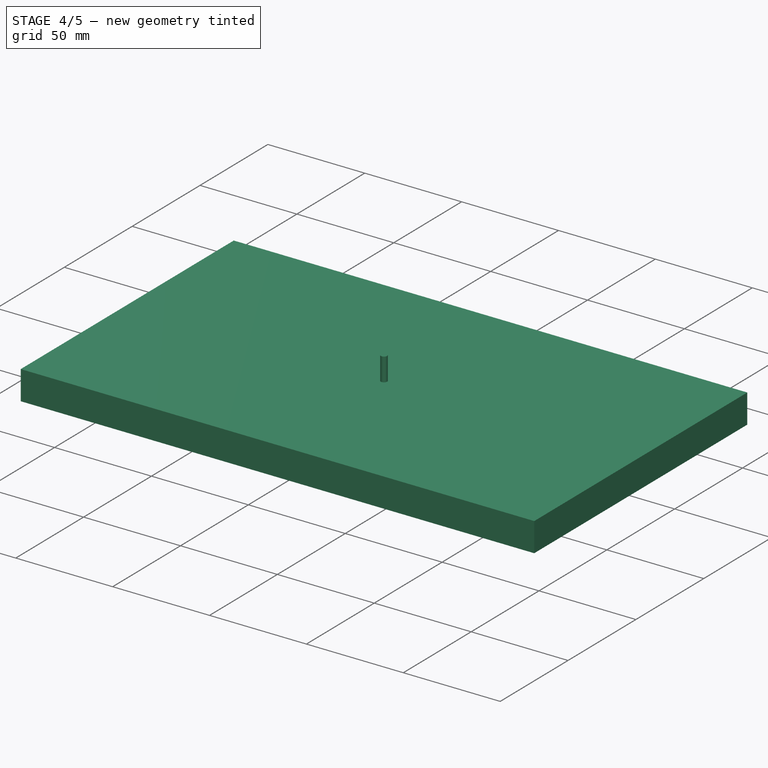
[diagram: stage 4 of 5 — iso view after this stage's code; geometry added in this stage tinted green]
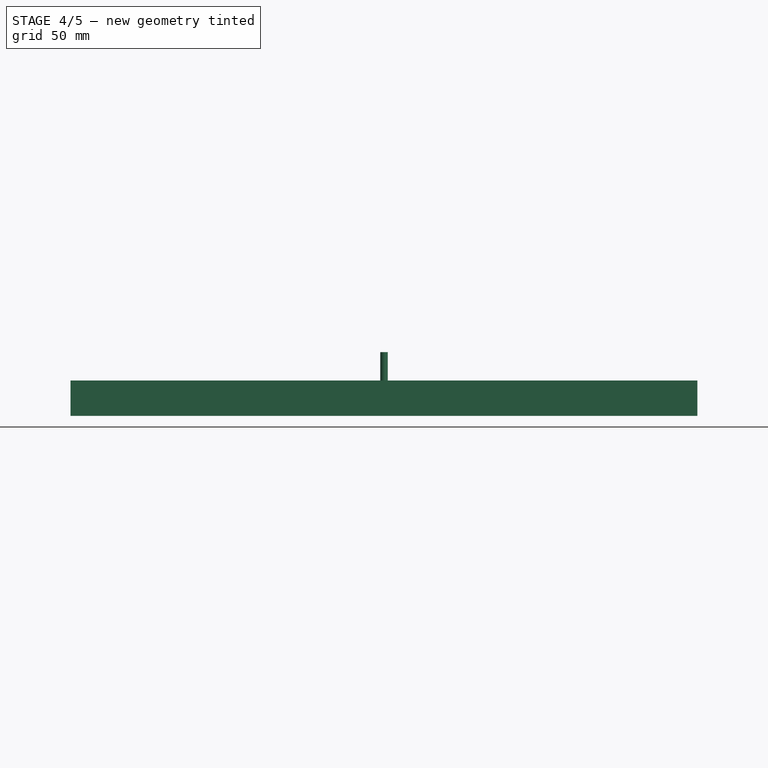
[diagram: stage 4 of 5 — front view after this stage's code; geometry added in this stage tinted green]
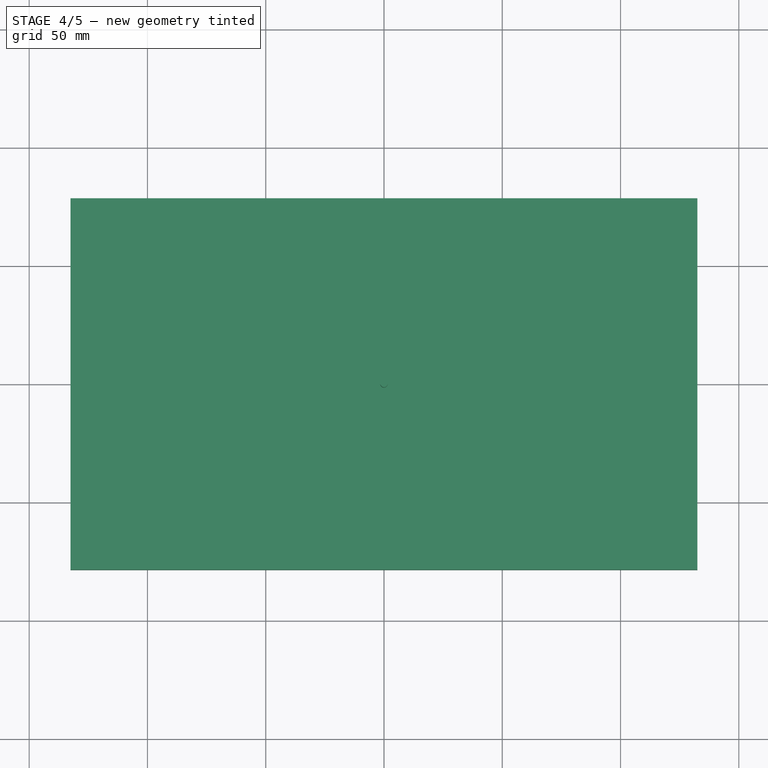
[diagram: stage 4 of 5 — top view after this stage's code; geometry added in this stage tinted green]
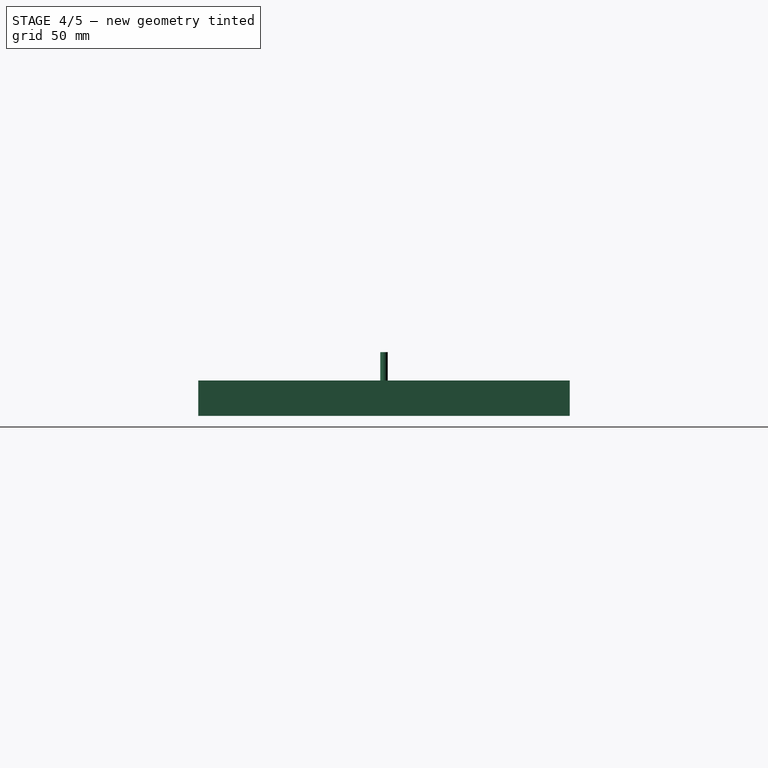
[diagram: stage 4 of 5 — right view after this stage's code; geometry added in this stage tinted green]
FEATURE [App::DocumentObjectGroup] Model
  Group = -> [Clone]
FEATURE [Part::FeaturePython] ToolBit  label="0.8mm_Endmill004"  # Path/CAM toolbit (typed FeaturePython)
  BitPropertyNames = Chipload | CuttingEdgeHeight | Diameter | Flutes | Length | Material | ShankDiameter | SpindleDirection
  BitShape = /private/var/folders/4z/cpn_82wx3qz0m4lfqxz9fps80000gn/T/AppTranslocation/126785DC-0F5B-4CDE-97FB-C5FB5BEDB88A/d/FreeCAD.app/Contents/Resources/Mod/CAM/Tools/Shape/endmill.fcstd
  Chipload = 0
  CuttingEdgeHeight = 10
  Diameter = 0.8
  Flutes = 0
  Length = 27
  Material = 0
  ShankDiameter = 3.17
  ShapeName = endmill
  SpindleDirection = 0
FEATURE [Path::FeaturePython] __0mm_Endmill003  label="3.0mm_Endmill001"  # Path/CAM operation (typed FeaturePython)
  HorizFeed = 3.33333
  HorizRapid = 0
  SpindleDir = 0
  SpindleSpeed = 1000
  Tool = -> ToolBit011
  ToolNumber = 13
  VertFeed = 3.33333
  VertRapid = 0
  expr: HorizRapid = SetupSheet.HorizRapid
  expr: VertRapid = SetupSheet.VertRapid
FEATURE [Part::FeaturePython] ToolBit012  label="3.175mm_endmill009"  # Path/CAM toolbit (typed FeaturePython)
  BitPropertyNames = Chipload | CuttingEdgeHeight | Diameter | Flutes | Length | Material | ShankDiameter | SpindleDirection
  BitShape = /private/var/folders/4z/cpn_82wx3qz0m4lfqxz9fps80000gn/T/AppTranslocation/126785DC-0F5B-4CDE-97FB-C5FB5BEDB88A/d/FreeCAD.app/Contents/Resources/Mod/CAM/Tools/Shape/endmill.fcstd
  Chipload = 0
  CuttingEdgeHeight = 10
  Diameter = 3.17
  Flutes = 0
  Length = 27
  Material = 0
  ShankDiameter = 3.17
  ShapeName = endmill
  SpindleDirection = 0
FEATURE [Path::FeaturePython] __175mm_endmill007  label="3.175mm_endmill008"  # Path/CAM operation (typed FeaturePython)
  HorizFeed = 3.33333
  HorizRapid = 0
  SpindleDir = 0
  SpindleSpeed = 1000
  Tool = -> ToolBit012
  ToolNumber = 6
  VertFeed = 3.33333
  VertRapid = 0
  expr: HorizRapid = SetupSheet.HorizRapid
  expr: VertRapid = SetupSheet.VertRapid
FEATURE [App::DocumentObjectGroup] Tools
  Group = -> [__8mm_Endmill001,__0mm_Endmill001,__2mm_endmill001,__4mm_Endmill001,__6mm_Endmill002,__8mm_Endmill002,__0mm_Endmill002,__2mm_Endmill,__4mm_Endmill002,__6mm_Endmill,__8mm_Endmill003,__0mm_Endmill003,__175mm_endmill007]
FEATURE [Part::FeaturePython] Stock  # WARN: FeaturePython — macro-defined, semantics opaque (R4)
  Base = -> Model
  ExtXneg = 1
  ExtXpos = 1
  ExtYneg = 1
  ExtYpos = 1
  ExtZneg = 0
  ExtZpos = 0
  Placement = pos=(-131.5,-77.5,0) rot=(0,0,1;0rad)
  StockType = FromBase
FEATURE [App::DocumentObjectGroup] Model001
  Group = -> [Clone001]
FEATURE [Part::FeaturePython] ToolBit013  label="0.8mm_Endmill006"  # Path/CAM toolbit (typed FeaturePython)
  BitPropertyNames = Chipload | CuttingEdgeHeight | Diameter | Flutes | Length | Material | ShankDiameter | SpindleDirection
  BitShape = /private/var/folders/4z/cpn_82wx3qz0m4lfqxz9fps80000gn/T/AppTranslocation/126785DC-0F5B-4CDE-97FB-C5FB5BEDB88A/d/FreeCAD.app/Contents/Resources/Mod/CAM/Tools/Shape/endmill.fcstd
  Chipload = 0
  CuttingEdgeHeight = 10
  Diameter = 0.8
  Flutes = 0
  Length = 27
  Material = 0
  ShankDiameter = 3.17
  ShapeName = endmill
  SpindleDirection = 0
FEATURE [Path::FeaturePython] __8mm_Endmill004  label="0.8mm_Endmill005"  # Path/CAM operation (typed FeaturePython)
  HorizFeed = 3.33333
  HorizRapid = 0
  SpindleDir = 0
  SpindleSpeed = 1000
  Tool = -> ToolBit013
  ToolNumber = 2
  VertFeed = 3.33333
  VertRapid = 0
  expr: HorizRapid = SetupSheet001.HorizRapid
  expr: VertRapid = SetupSheet001.VertRapid
FEATURE [Part::FeaturePython] ToolBit014  label="1.0mm_Endmill005"  # Path/CAM toolbit (typed FeaturePython)
  BitPropertyNames = Chipload | CuttingEdgeHeight | Diameter | Flutes | Length | Material | ShankDiameter | SpindleDirection
  BitShape = /private/var/folders/4z/cpn_82wx3qz0m4lfqxz9fps80000gn/T/AppTranslocation/126785DC-0F5B-4CDE-97FB-C5FB5BEDB88A/d/FreeCAD.app/Contents/Resources/Mod/CAM/Tools/Shape/endmill.fcstd
  Chipload = 0
  CuttingEdgeHeight = 10
  Diameter = 1
  Flutes = 0
  Length = 27
  Material = 0
  ShankDiameter = 3.17
  ShapeName = endmill
  SpindleDirection = 0
FEATURE [Path::FeaturePython] __0mm_Endmill004  label="1.0mm_Endmill004"  # Path/CAM operation (typed FeaturePython)
  HorizFeed = 3.33333
  HorizRapid = 0
  SpindleDir = 0
  SpindleSpeed = 1000
  Tool = -> ToolBit014
  ToolNumber = 3
  VertFeed = 3.33333
  VertRapid = 0
  expr: HorizRapid = SetupSheet001.HorizRapid
  expr: VertRapid = SetupSheet001.VertRapid
FEATURE [Part::FeaturePython] ToolBit015  label="1.2mm_endmill005"  # Path/CAM toolbit (typed FeaturePython)
  BitPropertyNames = Chipload | CuttingEdgeHeight | Diameter | Flutes | Length | Material | ShankDiameter | SpindleDirection
  BitShape = /private/var/folders/4z/cpn_82wx3qz0m4lfqxz9fps80000gn/T/AppTranslocation/126785DC-0F5B-4CDE-97FB-C5FB5BEDB88A/d/FreeCAD.app/Contents/Resources/Mod/CAM/Tools/Shape/endmill.fcstd
  Chipload = 0
  CuttingEdgeHeight = 10
  Diameter = 1.2
  Flutes = 0
  Length = 27
  Material = 0
  ShankDiameter = 3.13
  ShapeName = endmill
  SpindleDirection = 0
FEATURE [Path::FeaturePython] __2mm_endmill002  label="1.2mm_endmill004"  # Path/CAM operation (typed FeaturePython)
  HorizFeed = 3.33333
  HorizRapid = 0
  SpindleDir = 0
  SpindleSpeed = 1000
  Tool = -> ToolBit015
  ToolNumber = 4
  VertFeed = 3.33333
  VertRapid = 0
  expr: HorizRapid = SetupSheet001.HorizRapid
  expr: VertRapid = SetupSheet001.VertRapid
FEATURE [Part::FeaturePython] ToolBit016  label="1.4mm_Endmill005"  # Path/CAM toolbit (typed FeaturePython)
  BitPropertyNames = Chipload | CuttingEdgeHeight | Diameter | Flutes | Length | Material | ShankDiameter | SpindleDirection
  BitShape = /private/var/folders/4z/cpn_82wx3qz0m4lfqxz9fps80000gn/T/AppTranslocation/126785DC-0F5B-4CDE-97FB-C5FB5BEDB88A/d/FreeCAD.app/Contents/Resources/Mod/CAM/Tools/Shape/endmill.fcstd
  Chipload = 0
  CuttingEdgeHeight = 10
  Diameter = 1.4
  Flutes = 0
  Length = 27
  Material = 0
  ShankDiameter = 3.17
  ShapeName = endmill
  SpindleDirection = 0
FEATURE [Path::FeaturePython] __6mm_Endmill003  label="1.6mm_Endmill004"  # Path/CAM operation (typed FeaturePython)
  HorizFeed = 8.33333
  HorizRapid = 0
  SpindleDir = 0
  SpindleSpeed = 1000
  Tool = -> ToolBit017
  ToolNumber = 14
  VertFeed = 8.33333
  VertRapid = 0
  expr: HorizRapid = SetupSheet001.HorizRapid
  expr: VertRapid = SetupSheet001.VertRapid
FEATURE [Part::FeaturePython] ToolBit018  label="1.8mm_Endmill003"  # Path/CAM toolbit (typed FeaturePython)
  BitPropertyNames = Chipload | CuttingEdgeHeight | Diameter | Flutes | Length | Material | ShankDiameter | SpindleDirection
  BitShape = /private/var/folders/4z/cpn_82wx3qz0m4lfqxz9fps80000gn/T/AppTranslocation/126785DC-0F5B-4CDE-97FB-C5FB5BEDB88A/d/FreeCAD.app/Contents/Resources/Mod/CAM/Tools/Shape/endmill.fcstd
  Chipload = 0
  CuttingEdgeHeight = 10
  Diameter = 1.8
  Flutes = 0
  Length = 27
  Material = 0
  ShankDiameter = 3.17
  ShapeName = endmill
  SpindleDirection = 0
FEATURE [Path::FeaturePython] __8mm_Endmill005  label="1.8mm_Endmill002"  # Path/CAM operation (typed FeaturePython)
  HorizFeed = 3.33333
  HorizRapid = 0
  SpindleDir = 0
  SpindleSpeed = 1000
  Tool = -> ToolBit018
  ToolNumber = 7
  VertFeed = 3.33333
  VertRapid = 0
  expr: HorizRapid = SetupSheet001.HorizRapid
  expr: VertRapid = SetupSheet001.VertRapid
FEATURE [Part::FeaturePython] ToolBit019  label="2.0mm_Endmill003"  # Path/CAM toolbit (typed FeaturePython)
  BitPropertyNames = Chipload | CuttingEdgeHeight | Diameter | Flutes | Length | Material | ShankDiameter | SpindleDirection
  BitShape = /private/var/folders/4z/cpn_82wx3qz0m4lfqxz9fps80000gn/T/AppTranslocation/126785DC-0F5B-4CDE-97FB-C5FB5BEDB88A/d/FreeCAD.app/Contents/Resources/Mod/CAM/Tools/Shape/endmill.fcstd
  Chipload = 0
  CuttingEdgeHeight = 10
  Diameter = 2
  Flutes = 0
  Length = 27
  Material = 0
  ShankDiameter = 3.17
  ShapeName = endmill
  SpindleDirection = 0
FEATURE [Path::FeaturePython] __0mm_Endmill005  label="2.0mm_Endmill002"  # Path/CAM operation (typed FeaturePython)
  HorizFeed = 8.33333
  HorizRapid = 0
  SpindleDir = 0
  SpindleSpeed = 2000
  Tool = -> ToolBit019
  ToolNumber = 8
  VertFeed = 8.33333
  VertRapid = 0
  expr: HorizRapid = SetupSheet001.HorizRapid
  expr: VertRapid = SetupSheet001.VertRapid
FEATURE [Part::FeaturePython] ToolBit020  label="2.2mm_Endmill003"  # Path/CAM toolbit (typed FeaturePython)
  BitPropertyNames = Chipload | CuttingEdgeHeight | Diameter | Flutes | Length | Material | ShankDiameter | SpindleDirection
  BitShape = /private/var/folders/4z/cpn_82wx3qz0m4lfqxz9fps80000gn/T/AppTranslocation/126785DC-0F5B-4CDE-97FB-C5FB5BEDB88A/d/FreeCAD.app/Contents/Resources/Mod/CAM/Tools/Shape/endmill.fcstd
  Chipload = 0
  CuttingEdgeHeight = 10
  Diameter = 2.2
  Flutes = 0
  Length = 27
  Material = 0
  ShankDiameter = 3.17
  ShapeName = endmill
  SpindleDirection = 0
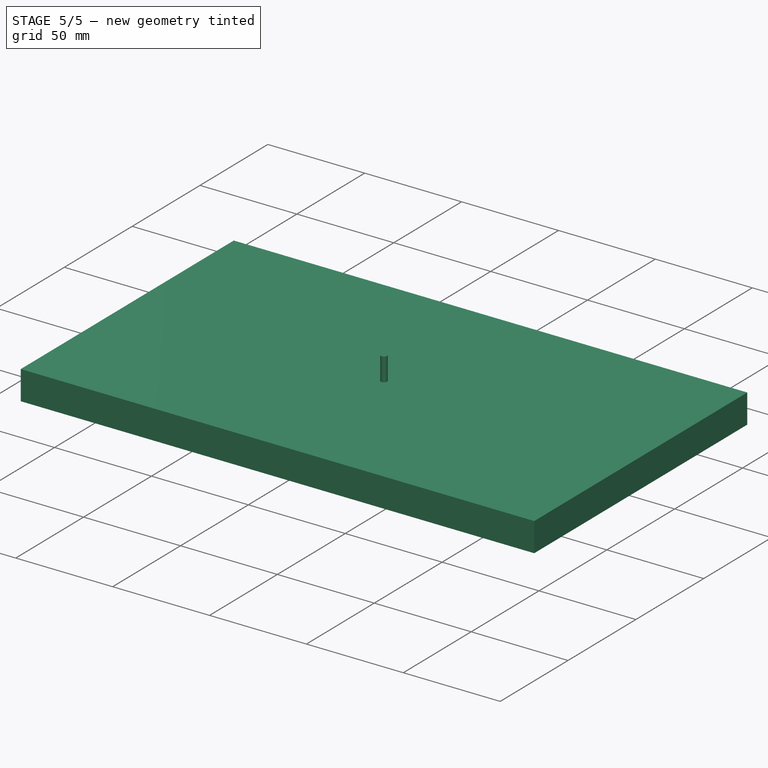
[diagram: stage 5 of 5 — iso view after this stage's code; geometry added in this stage tinted green]
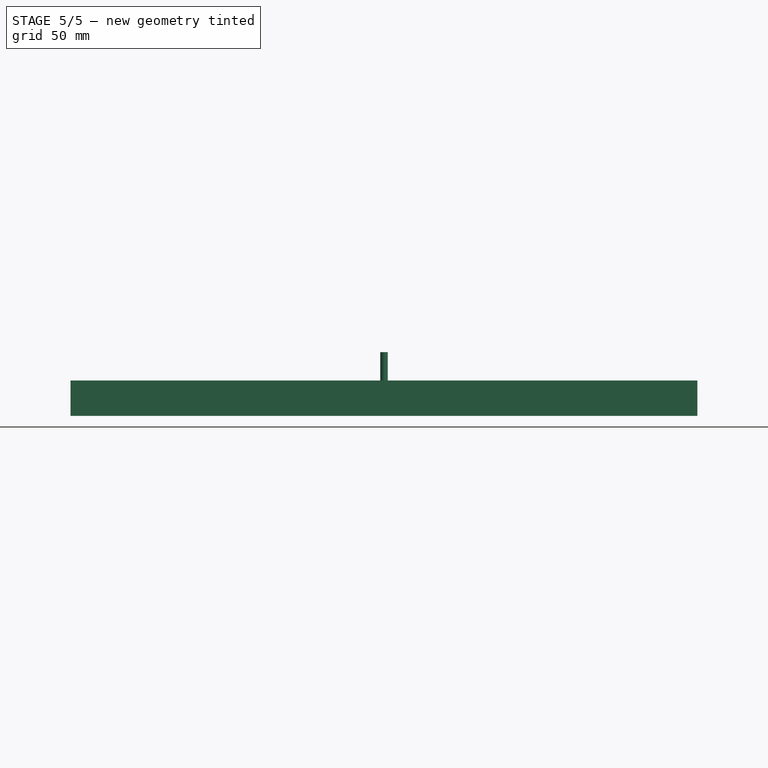
[diagram: stage 5 of 5 — front view after this stage's code; geometry added in this stage tinted green]
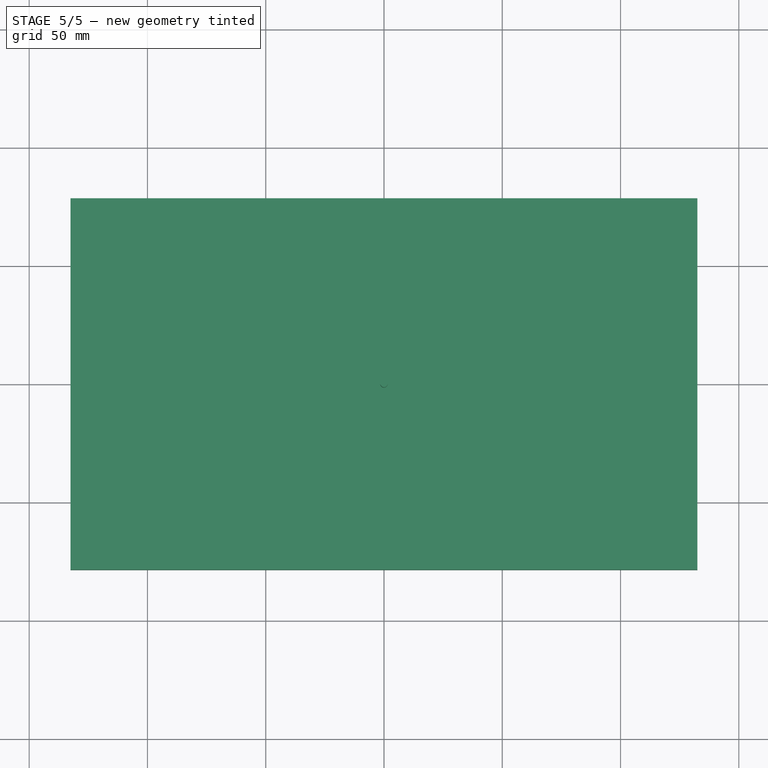
[diagram: stage 5 of 5 — top view after this stage's code; geometry added in this stage tinted green]
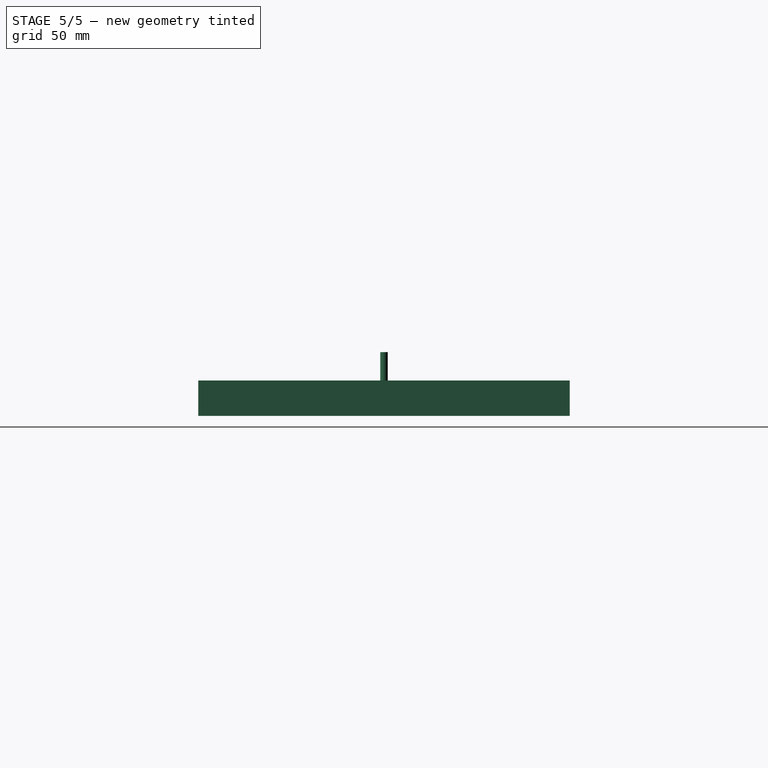
[diagram: stage 5 of 5 — right view after this stage's code; geometry added in this stage tinted green]
FEATURE [Path::FeaturePython] __8mm_Endmill001  label="0.8mm_Endmill002"  # Path/CAM operation (typed FeaturePython)
  HorizFeed = 8.33333
  HorizRapid = 0
  SpindleDir = 0
  SpindleSpeed = 2000
  Tool = -> ToolBit
  ToolNumber = 2
  VertFeed = 8.33333
  VertRapid = 0
  expr: HorizRapid = SetupSheet.HorizRapid
  expr: VertRapid = SetupSheet.VertRapid
FEATURE [Part::FeaturePython] ToolBit001  label="1.0mm_Endmill003"  # Path/CAM toolbit (typed FeaturePython)
  BitPropertyNames = Chipload | CuttingEdgeHeight | Diameter | Flutes | Length | Material | ShankDiameter | SpindleDirection
  BitShape = /private/var/folders/4z/cpn_82wx3qz0m4lfqxz9fps80000gn/T/AppTranslocation/126785DC-0F5B-4CDE-97FB-C5FB5BEDB88A/d/FreeCAD.app/Contents/Resources/Mod/CAM/Tools/Shape/endmill.fcstd
  Chipload = 0
  CuttingEdgeHeight = 10
  Diameter = 1
  Flutes = 0
  Length = 27
  Material = 0
  ShankDiameter = 3.17
  ShapeName = endmill
  SpindleDirection = 0
FEATURE [Path::FeaturePython] __0mm_Endmill001  label="1.0mm_Endmill002"  # Path/CAM operation (typed FeaturePython)
  HorizFeed = 3.33333
  HorizRapid = 0
  SpindleDir = 0
  SpindleSpeed = 1000
  Tool = -> ToolBit001
  ToolNumber = 3
  VertFeed = 3.33333
  VertRapid = 0
  expr: HorizRapid = SetupSheet.HorizRapid
  expr: VertRapid = SetupSheet.VertRapid
FEATURE [Part::FeaturePython] ToolBit002  label="1.2mm_endmill003"  # Path/CAM toolbit (typed FeaturePython)
  BitPropertyNames = Chipload | CuttingEdgeHeight | Diameter | Flutes | Length | Material | ShankDiameter | SpindleDirection
  BitShape = /private/var/folders/4z/cpn_82wx3qz0m4lfqxz9fps80000gn/T/AppTranslocation/126785DC-0F5B-4CDE-97FB-C5FB5BEDB88A/d/FreeCAD.app/Contents/Resources/Mod/CAM/Tools/Shape/endmill.fcstd
  Chipload = 0
  CuttingEdgeHeight = 10
  Diameter = 1.2
  Flutes = 0
  Length = 27
  Material = 0
  ShankDiameter = 3.13
  ShapeName = endmill
  SpindleDirection = 0
FEATURE [Path::FeaturePython] __2mm_endmill001  label="1.2mm_endmill002"  # Path/CAM operation (typed FeaturePython)
  HorizFeed = 3.33333
  HorizRapid = 0
  SpindleDir = 0
  SpindleSpeed = 1000
  Tool = -> ToolBit002
  ToolNumber = 4
  VertFeed = 3.33333
  VertRapid = 0
  expr: HorizRapid = SetupSheet.HorizRapid
  expr: VertRapid = SetupSheet.VertRapid
FEATURE [Part::FeaturePython] ToolBit003  label="1.4mm_Endmill003"  # Path/CAM toolbit (typed FeaturePython)
  BitPropertyNames = Chipload | CuttingEdgeHeight | Diameter | Flutes | Length | Material | ShankDiameter | SpindleDirection
  BitShape = /private/var/folders/4z/cpn_82wx3qz0m4lfqxz9fps80000gn/T/AppTranslocation/126785DC-0F5B-4CDE-97FB-C5FB5BEDB88A/d/FreeCAD.app/Contents/Resources/Mod/CAM/Tools/Shape/endmill.fcstd
  Chipload = 0
  CuttingEdgeHeight = 10
  Diameter = 1.4
  Flutes = 0
  Length = 27
  Material = 0
  ShankDiameter = 3.17
  ShapeName = endmill
  SpindleDirection = 0
FEATURE [Path::FeaturePython] __4mm_Endmill001  label="1.4mm_Endmill002"  # Path/CAM operation (typed FeaturePython)
  HorizFeed = 3.33333
  HorizRapid = 0
  SpindleDir = 0
  SpindleSpeed = 1000
  Tool = -> ToolBit003
  ToolNumber = 5
  VertFeed = 3.33333
  VertRapid = 0
  expr: HorizRapid = SetupSheet.HorizRapid
  expr: VertRapid = SetupSheet.VertRapid
FEATURE [Part::FeaturePython] ToolBit004  label="1.6mm_Endmill002"  # Path/CAM toolbit (typed FeaturePython)
  BitPropertyNames = Chipload | CuttingEdgeHeight | Diameter | Flutes | Length | Material | ShankDiameter | SpindleDirection
  BitShape = /private/var/folders/4z/cpn_82wx3qz0m4lfqxz9fps80000gn/T/AppTranslocation/126785DC-0F5B-4CDE-97FB-C5FB5BEDB88A/d/FreeCAD.app/Contents/Resources/Mod/CAM/Tools/Shape/endmill.fcstd
  Chipload = 0
  CuttingEdgeHeight = 10
  Diameter = 1.6
  Flutes = 0
  Length = 27
  Material = 0
  ShankDiameter = 3.17
  ShapeName = endmill
  SpindleDirection = 0
FEATURE [Path::FeaturePython] __6mm_Endmill002  label="1.6mm_Endmill003"  # Path/CAM operation (typed FeaturePython)
  HorizFeed = 8.33333
  HorizRapid = 0
  SpindleDir = 0
  SpindleSpeed = 1000
  Tool = -> ToolBit004
  ToolNumber = 14
  VertFeed = 8.33333
  VertRapid = 0
  expr: HorizRapid = SetupSheet.HorizRapid
  expr: VertRapid = SetupSheet.VertRapid
FEATURE [Part::FeaturePython] ToolBit005  label="1.8mm_Endmill"  # Path/CAM toolbit (typed FeaturePython)
  BitPropertyNames = Chipload | CuttingEdgeHeight | Diameter | Flutes | Length | Material | ShankDiameter | SpindleDirection
  BitShape = /private/var/folders/4z/cpn_82wx3qz0m4lfqxz9fps80000gn/T/AppTranslocation/126785DC-0F5B-4CDE-97FB-C5FB5BEDB88A/d/FreeCAD.app/Contents/Resources/Mod/CAM/Tools/Shape/endmill.fcstd
  Chipload = 0
  CuttingEdgeHeight = 10
  Diameter = 1.8
  Flutes = 0
  Length = 27
  Material = 0
  ShankDiameter = 3.17
  ShapeName = endmill
  SpindleDirection = 0
FEATURE [Path::FeaturePython] __8mm_Endmill002  label="1.8mm_Endmill001"  # Path/CAM operation (typed FeaturePython)
  HorizFeed = 3.33333
  HorizRapid = 0
  SpindleDir = 0
  SpindleSpeed = 1000
  Tool = -> ToolBit005
  ToolNumber = 7
  VertFeed = 3.33333
  VertRapid = 0
  expr: HorizRapid = SetupSheet.HorizRapid
  expr: VertRapid = SetupSheet.VertRapid
FEATURE [Part::FeaturePython] ToolBit006  label="2.0mm_Endmill"  # Path/CAM toolbit (typed FeaturePython)
  BitPropertyNames = Chipload | CuttingEdgeHeight | Diameter | Flutes | Length | Material | ShankDiameter | SpindleDirection
  BitShape = /private/var/folders/4z/cpn_82wx3qz0m4lfqxz9fps80000gn/T/AppTranslocation/126785DC-0F5B-4CDE-97FB-C5FB5BEDB88A/d/FreeCAD.app/Contents/Resources/Mod/CAM/Tools/Shape/endmill.fcstd
  Chipload = 0
  CuttingEdgeHeight = 10
  Diameter = 2
  Flutes = 0
  Length = 27
  Material = 0
  ShankDiameter = 3.17
  ShapeName = endmill
  SpindleDirection = 0
FEATURE [Path::FeaturePython] __0mm_Endmill002  label="2.0mm_Endmill001"  # Path/CAM operation (typed FeaturePython)
  HorizFeed = 3.33333
  HorizRapid = 0
  SpindleDir = 0
  SpindleSpeed = 1000
  Tool = -> ToolBit006
  ToolNumber = 8
  VertFeed = 3.33333
  VertRapid = 0
  expr: HorizRapid = SetupSheet.HorizRapid
  expr: VertRapid = SetupSheet.VertRapid
FEATURE [Part::FeaturePython] ToolBit007  label="2.2mm_Endmill"  # Path/CAM toolbit (typed FeaturePython)
  BitPropertyNames = Chipload | CuttingEdgeHeight | Diameter | Flutes | Length | Material | ShankDiameter | SpindleDirection
  BitShape = /private/var/folders/4z/cpn_82wx3qz0m4lfqxz9fps80000gn/T/AppTranslocation/126785DC-0F5B-4CDE-97FB-C5FB5BEDB88A/d/FreeCAD.app/Contents/Resources/Mod/CAM/Tools/Shape/endmill.fcstd
  Chipload = 0
  CuttingEdgeHeight = 10
  Diameter = 2.2
  Flutes = 0
  Length = 27
  Material = 0
  ShankDiameter = 3.17
  ShapeName = endmill
  SpindleDirection = 0
FEATURE [Path::FeaturePython] __2mm_Endmill  label="2.2mm_Endmill001"  # Path/CAM operation (typed FeaturePython)
  HorizFeed = 3.33333
  HorizRapid = 0
  SpindleDir = 0
  SpindleSpeed = 1000
  Tool = -> ToolBit007
  ToolNumber = 9
  VertFeed = 3.33333
  VertRapid = 0
  expr: HorizRapid = SetupSheet.HorizRapid
  expr: VertRapid = SetupSheet.VertRapid
FEATURE [Part::FeaturePython] ToolBit008  label="2.4mm_Endmill"  # Path/CAM toolbit (typed FeaturePython)
  BitPropertyNames = Chipload | CuttingEdgeHeight | Diameter | Flutes | Length | Material | ShankDiameter | SpindleDirection
  BitShape = /private/var/folders/4z/cpn_82wx3qz0m4lfqxz9fps80000gn/T/AppTranslocation/126785DC-0F5B-4CDE-97FB-C5FB5BEDB88A/d/FreeCAD.app/Contents/Resources/Mod/CAM/Tools/Shape/endmill.fcstd
  Chipload = 0
  CuttingEdgeHeight = 10
  Diameter = 2.4
  Flutes = 0
  Length = 27
  Material = 0
  ShankDiameter = 3.17
  ShapeName = endmill
  SpindleDirection = 0
FEATURE [Path::FeaturePython] __4mm_Endmill002  label="2.4mm_Endmill001"  # Path/CAM operation (typed FeaturePython)
  HorizFeed = 3.33333
  HorizRapid = 0
  SpindleDir = 0
  SpindleSpeed = 1000
  Tool = -> ToolBit008
  ToolNumber = 10
  VertFeed = 3.33333
  VertRapid = 0
  expr: HorizRapid = SetupSheet.HorizRapid
  expr: VertRapid = SetupSheet.VertRapid
FEATURE [Part::FeaturePython] ToolBit009  label="2.6mm_Endmill"  # Path/CAM toolbit (typed FeaturePython)
  BitPropertyNames = Chipload | CuttingEdgeHeight | Diameter | Flutes | Length | Material | ShankDiameter | SpindleDirection
  BitShape = /private/var/folders/4z/cpn_82wx3qz0m4lfqxz9fps80000gn/T/AppTranslocation/126785DC-0F5B-4CDE-97FB-C5FB5BEDB88A/d/FreeCAD.app/Contents/Resources/Mod/CAM/Tools/Shape/endmill.fcstd
  Chipload = 0
  CuttingEdgeHeight = 10
  Diameter = 2.6
  Flutes = 0
  Length = 27
  Material = 0
  ShankDiameter = 3.17
  ShapeName = endmill
  SpindleDirection = 0
FEATURE [Path::FeaturePython] __6mm_Endmill  label="2.6mm_Endmill001"  # Path/CAM operation (typed FeaturePython)
  HorizFeed = 3.33333
  HorizRapid = 0
  SpindleDir = 0
  SpindleSpeed = 1000
  Tool = -> ToolBit009
  ToolNumber = 11
  VertFeed = 3.33333
  VertRapid = 0
  expr: HorizRapid = SetupSheet.HorizRapid
  expr: VertRapid = SetupSheet.VertRapid
FEATURE [Part::FeaturePython] ToolBit010  label="2.8mm_Endmill"  # Path/CAM toolbit (typed FeaturePython)
  BitPropertyNames = Chipload | CuttingEdgeHeight | Diameter | Flutes | Length | Material | ShankDiameter | SpindleDirection
  BitShape = /private/var/folders/4z/cpn_82wx3qz0m4lfqxz9fps80000gn/T/AppTranslocation/126785DC-0F5B-4CDE-97FB-C5FB5BEDB88A/d/FreeCAD.app/Contents/Resources/Mod/CAM/Tools/Shape/endmill.fcstd
  Chipload = 0
  CuttingEdgeHeight = 10
  Diameter = 2.8
  Flutes = 0
  Length = 27
  Material = 0
  ShankDiameter = 3.17
  ShapeName = endmill
  SpindleDirection = 0
FEATURE [Path::FeaturePython] __8mm_Endmill003  label="2.8mm_Endmill001"  # Path/CAM operation (typed FeaturePython)
  HorizFeed = 3.33333
  HorizRapid = 0
  SpindleDir = 0
  SpindleSpeed = 1000
  Tool = -> ToolBit010
  ToolNumber = 12
  VertFeed = 3.33333
  VertRapid = 0
  expr: HorizRapid = SetupSheet.HorizRapid
  expr: VertRapid = SetupSheet.VertRapid
FEATURE [Part::FeaturePython] ToolBit011  label="3.0mm_Endmill"  # Path/CAM toolbit (typed FeaturePython)
  BitPropertyNames = Chipload | CuttingEdgeHeight | Diameter | Flutes | Length | Material | ShankDiameter | SpindleDirection
  BitShape = /private/var/folders/4z/cpn_82wx3qz0m4lfqxz9fps80000gn/T/AppTranslocation/126785DC-0F5B-4CDE-97FB-C5FB5BEDB88A/d/FreeCAD.app/Contents/Resources/Mod/CAM/Tools/Shape/endmill.fcstd
  Chipload = 0
  CuttingEdgeHeight = 10
  Diameter = 3
  Flutes = 0
  Length = 27
  Material = 0
  ShankDiameter = 3.17
  ShapeName = endmill
  SpindleDirection = 0
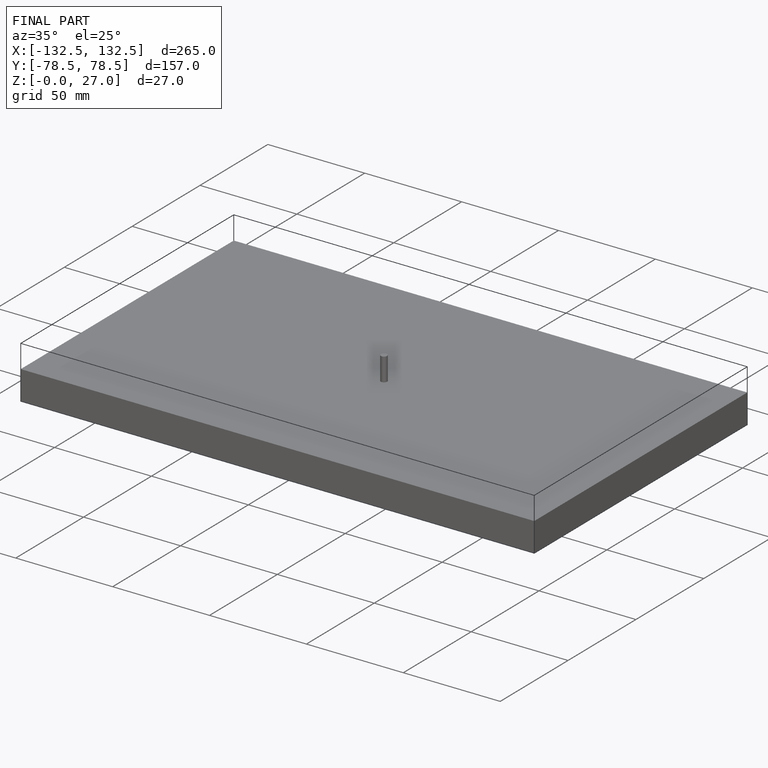
[diagram: finished part — iso view with bounding-box wireframe]
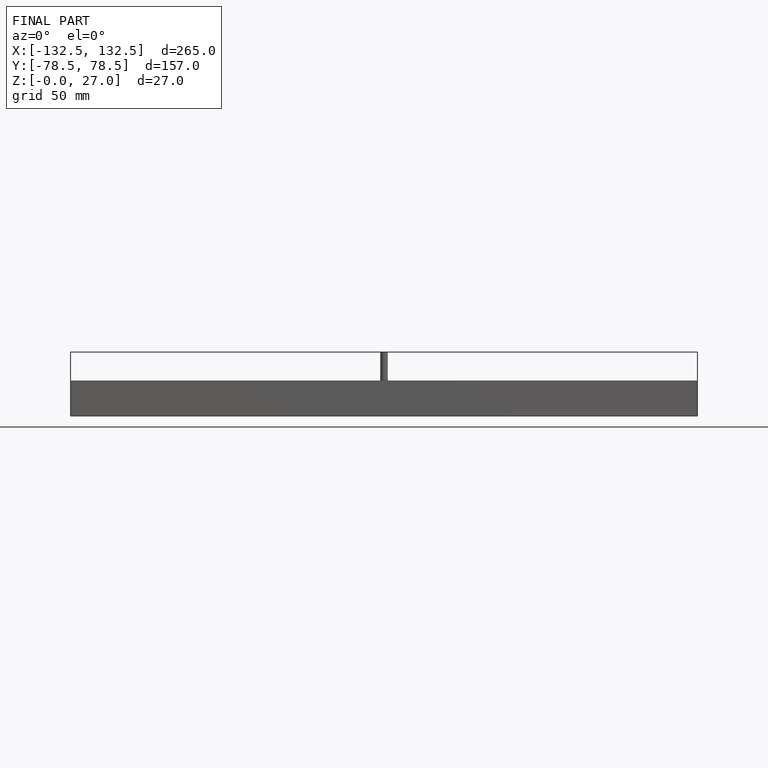
[diagram: finished part — front view with bounding-box wireframe]
